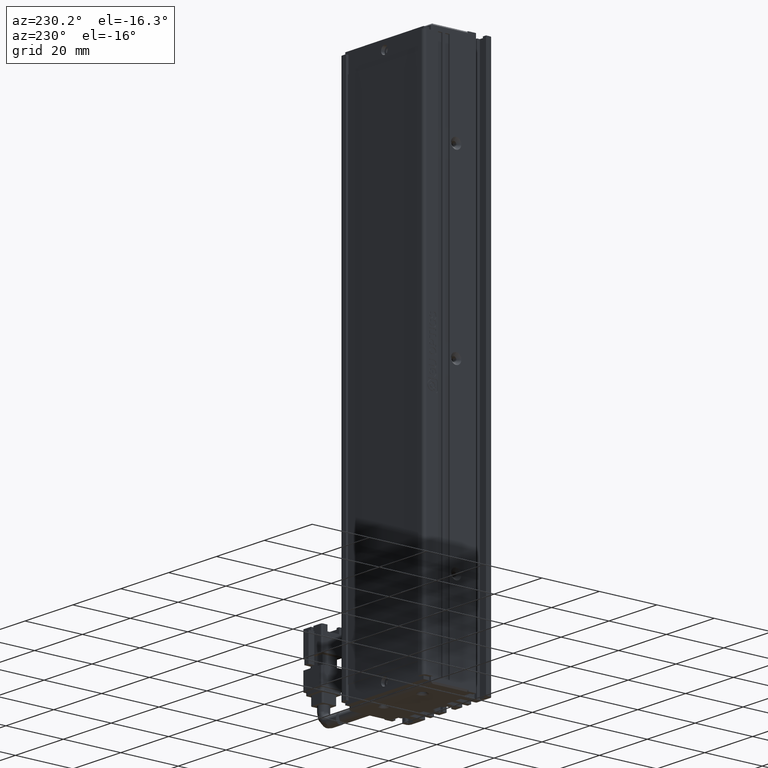
[diagram: clean part render]
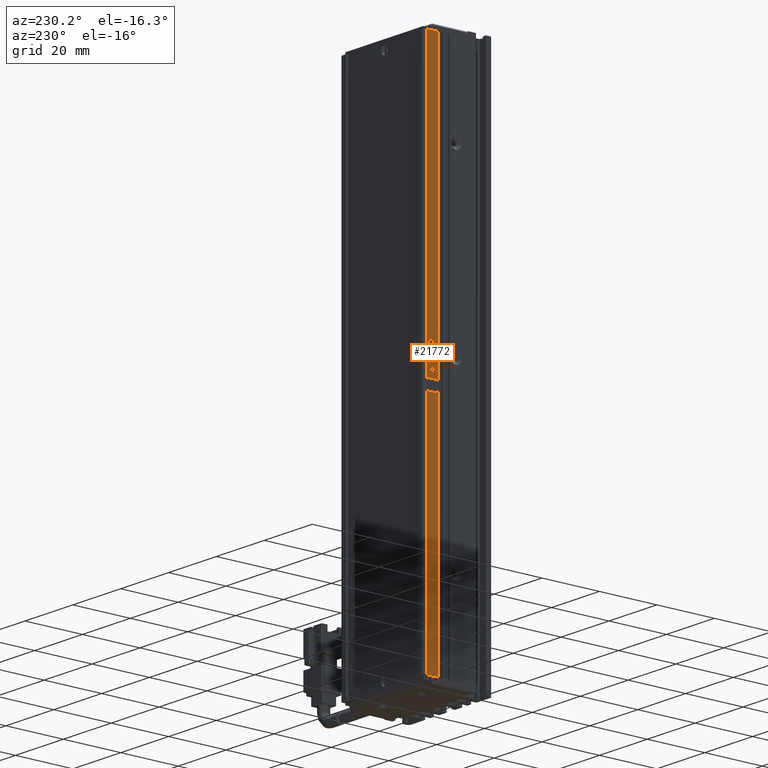
[diagram: same view with one face highlighted and labeled with its STEP entity id]
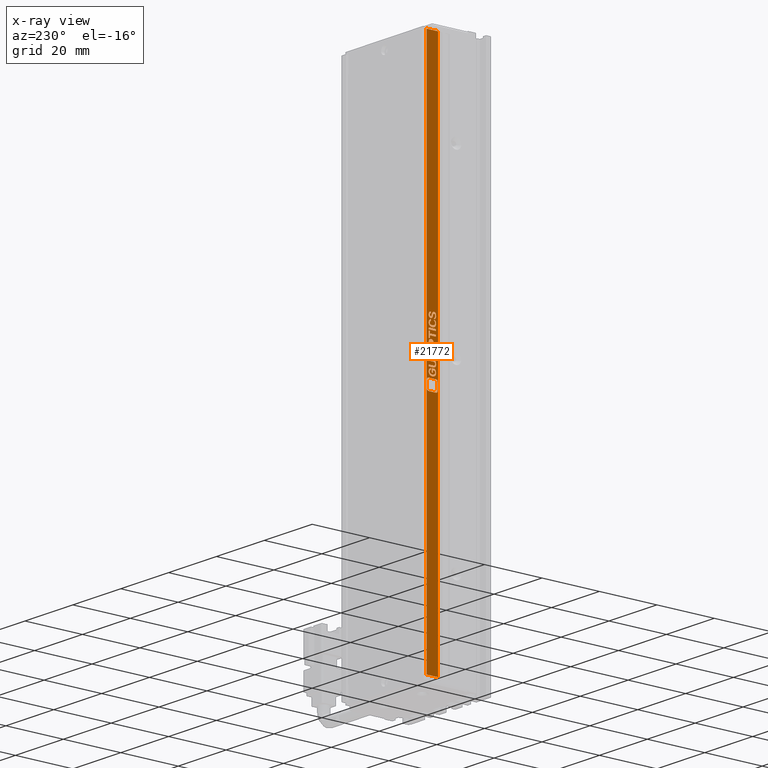
[diagram: x-ray of the same camera — body ghosted, the highlighted face saturated]
A machine part, auxiliary view. The second image highlights one B-rep face of the part: STEP entity #21772.
The next image is the same camera in x-ray: the body ghosted, the highlighted face saturated — about 0% of this face is hidden behind the body in this view.
In plain terms, the highlighted planar face has unit normal (-1, 0, 0).
Its self-contained STEP definition (entity closure, byte-faithful):
#51 = EDGE_CURVE ( 'NONE', #36726, #75204, #46672, .T. ) ;
#113 = DIRECTION ( 'NONE',  ( -0.0000000000000000000, -1.000000000000000000, -0.0000000000000000000 ) ) ;
#222 = ORIENTED_EDGE ( 'NONE', *, *, #36299, .F. ) ;
#394 = LINE ( 'NONE', #42492, #30866 ) ;
#593 = VERTEX_POINT ( 'NONE', #36191 ) ;
#615 = CARTESIAN_POINT ( 'NONE',  ( 23.42537974683542100, 31.00584286050809300, -106.2553649728034600 ) ) ;
#643 = LINE ( 'NONE', #71882, #7338 ) ;
#746 = CARTESIAN_POINT ( 'NONE',  ( 23.42537974683542100, 31.01747076748483800, -104.8414250052534600 ) ) ;
#803 = CARTESIAN_POINT ( 'NONE',  ( 23.42537974683542500, 34.99073232304837700, -205.0000000000000300 ) ) ;
#1131 = ORIENTED_EDGE ( 'NONE', *, *, #7686, .F. ) ;
#1175 = CARTESIAN_POINT ( 'NONE',  ( 23.42537974683542100, 32.48657568906406800, -103.5288912031981900 ) ) ;
#1184 = EDGE_CURVE ( 'NONE', #40805, #28113, #62858, .T. ) ;
#1229 = B_SPLINE_CURVE_WITH_KNOTS ( 'NONE', 3,
 ( #8511, #63631, #27164, #63369 ),
 .UNSPECIFIED., .F., .F.,
 ( 4, 4 ),
 ( 12.00000000000000000, 13.00000000000000000 ),
 .UNSPECIFIED. ) ;
#1252 = ORIENTED_EDGE ( 'NONE', *, *, #41577, .F. ) ;
#1551 = CARTESIAN_POINT ( 'NONE',  ( 23.42537974683542100, 31.98657568906406500, -121.5250377689094400 ) ) ;
#1558 = EDGE_LOOP ( 'NONE', ( #56319, #25325, #64957, #71834, #36431, #23060, #25207, #45150, #32968, #32311, #53117, #67662, #18480, #61311 ) ) ;
#1565 = CARTESIAN_POINT ( 'NONE',  ( 23.42537974683542100, 32.78491262794995000, -113.4834612410564000 ) ) ;
#1579 = ORIENTED_EDGE ( 'NONE', *, *, #58697, .F. ) ;
#1737 = CARTESIAN_POINT ( 'NONE',  ( 23.42537974683542100, 32.17262220069199700, -119.3012681637174900 ) ) ;
#1768 = B_SPLINE_CURVE_WITH_KNOTS ( 'NONE', 3,
 ( #35319, #5483, #23794, #10785 ),
 .UNSPECIFIED., .F., .F.,
 ( 4, 4 ),
 ( 6.000000000000000000, 7.000000000000000000 ),
 .UNSPECIFIED. ) ;
#1866 = VERTEX_POINT ( 'NONE', #46801 ) ;
#1868 = CARTESIAN_POINT ( 'NONE',  ( 23.42537974683542100, 31.39355243325011500, -103.9953595644745800 ) ) ;
#1877 = LINE ( 'NONE', #45883, #77079 ) ;
#1885 = EDGE_CURVE ( 'NONE', #20479, #67409, #68729, .T. ) ;
#1989 = CARTESIAN_POINT ( 'NONE',  ( 23.42537974683542100, 30.68425010766872400, -120.3317576174762100 ) ) ;
#2095 = VERTEX_POINT ( 'NONE', #6061 ) ;
#2267 = B_SPLINE_CURVE_WITH_KNOTS ( 'NONE', 3,
 ( #45944, #3648, #39603, #58189 ),
 .UNSPECIFIED., .F., .F.,
 ( 4, 4 ),
 ( 3.000000000000000000, 4.000000000000000000 ),
 .UNSPECIFIED. ) ;
#2430 = CARTESIAN_POINT ( 'NONE',  ( 23.42537974683542100, 31.36248834455352600, -107.2785531826466800 ) ) ;
#2448 = B_SPLINE_CURVE_WITH_KNOTS ( 'NONE', 3,
 ( #69869, #38772, #33427, #3062 ),
 .UNSPECIFIED., .F., .F.,
 ( 4, 4 ),
 ( 7.000000000000000000, 8.000000000000000000 ),
 .UNSPECIFIED. ) ;
#2456 = EDGE_CURVE ( 'NONE', #45395, #19565, #2267, .T. ) ;
#2524 = VECTOR ( 'NONE', #4626, 1000.000000000000000 ) ;
#2655 = VERTEX_POINT ( 'NONE', #49089 ) ;
#2664 = CARTESIAN_POINT ( 'NONE',  ( 23.42537974683542100, 33.26564545650592200, -106.7072308462485600 ) ) ;
#2734 = LINE ( 'NONE', #29043, #59849 ) ;
#2736 = CARTESIAN_POINT ( 'NONE',  ( 23.42537974683542100, 30.39640236561360400, -125.8518911644461200 ) ) ;
#2737 = CARTESIAN_POINT ( 'NONE',  ( 23.42537974683542100, 33.26564545650592200, -114.5934531285632800 ) ) ;
#2830 = LINE ( 'NONE', #1175, #3826 ) ;
#2934 = CARTESIAN_POINT ( 'NONE',  ( 23.42537974683542100, 33.23076173557570500, -113.1073119711809600 ) ) ;
#3032 = ORIENTED_EDGE ( 'NONE', *, *, #17884, .F. ) ;
#3062 = CARTESIAN_POINT ( 'NONE',  ( 23.42537974683542100, 30.68425010766872400, -106.6855299268326100 ) ) ;
#3628 = DIRECTION ( 'NONE',  ( -0.0000000000000000000, -0.0000000000000000000, -1.000000000000000000 ) ) ;
#3648 = CARTESIAN_POINT ( 'NONE',  ( 23.42537974683542100, 31.02145940999428200, -118.2671956921111400 ) ) ;
#3826 = VECTOR ( 'NONE', #13371, 1000.000000000000000 ) ;
#3904 = B_SPLINE_CURVE_WITH_KNOTS ( 'NONE', 3,
 ( #72820, #55004, #42484, #12625 ),
 .UNSPECIFIED., .F., .F.,
 ( 4, 4 ),
 ( 12.00000000000000000, 13.00000000000000000 ),
 .UNSPECIFIED. ) ;
#3991 = VERTEX_POINT ( 'NONE', #18490 ) ;
#3997 = ORIENTED_EDGE ( 'NONE', *, *, #34635, .F. ) ;
#4228 = DIRECTION ( 'NONE',  ( -0.0000000000000000000, -1.000000000000000000, -0.0000000000000000000 ) ) ;
#4317 = ORIENTED_EDGE ( 'NONE', *, *, #36903, .F. ) ;
#4440 = CARTESIAN_POINT ( 'NONE',  ( 23.42537974683542100, 33.23076173557570500, -112.0985234368380200 ) ) ;
#4626 = DIRECTION ( 'NONE',  ( -0.0000000000000000000, -0.0000000000000000000, 1.000000000000000000 ) ) ;
#4647 = ORIENTED_EDGE ( 'NONE', *, *, #34954, .F. ) ;
#4817 = CARTESIAN_POINT ( 'NONE',  ( 23.42537974683542100, 33.26564545650592200, -119.8219550214785200 ) ) ;
#4869 = ORIENTED_EDGE ( 'NONE', *, *, #75230, .F. ) ;
#4976 = CARTESIAN_POINT ( 'NONE',  ( 23.42537974683542100, 32.41680824720360500, -111.2523903919487800 ) ) ;
#5032 = CARTESIAN_POINT ( 'NONE',  ( 23.42537974683542100, 32.90518034022684900, -106.6747132691799900 ) ) ;
#5141 = EDGE_CURVE ( 'NONE', #53782, #17506, #69372, .T. ) ;
#5249 = EDGE_LOOP ( 'NONE', ( #44089, #1131, #27827, #27060, #34429, #71986, #19159 ) ) ;
#5359 = CARTESIAN_POINT ( 'NONE',  ( 23.42537974683542100, 7.083797468354437600, -23.00000000000000700 ) ) ;
#5483 = CARTESIAN_POINT ( 'NONE',  ( 23.42537974683542100, 31.58723820934531500, -111.5200350647450000 ) ) ;
#5645 = CARTESIAN_POINT ( 'NONE',  ( 23.42537974683542100, 30.16530308192796300, -125.1721022657253400 ) ) ;
#5676 = ORIENTED_EDGE ( 'NONE', *, *, #40365, .F. ) ;
#6015 = EDGE_CURVE ( 'NONE', #62364, #19484, #74139, .T. ) ;
#6061 = CARTESIAN_POINT ( 'NONE',  ( 23.42537974683542100, 31.96331987511056400, -115.7541480988174000 ) ) ;
#6135 = VECTOR ( 'NONE', #75344, 1000.000000000000000 ) ;
#6274 = CARTESIAN_POINT ( 'NONE',  ( 23.42537974683542100, 30.39640236561360400, -122.1234659250104500 ) ) ;
#6322 = VECTOR ( 'NONE', #25749, 1000.000000000000000 ) ;
#6391 = DIRECTION ( 'NONE',  ( -1.000000000000000000, 0.0000000000000000000, 0.0000000000000000000 ) ) ;
#6419 = CARTESIAN_POINT ( 'NONE',  ( 23.42537974683542100, 31.78890127045943400, -118.9650053189365100 ) ) ;
#6533 = CARTESIAN_POINT ( 'NONE',  ( 23.42537974683542100, 30.73076173557570100, -110.2327175958428000 ) ) ;
#6606 = CARTESIAN_POINT ( 'NONE',  ( 23.42537974683542100, 31.59122685185477400, -105.4163979636090100 ) ) ;
#6623 = FACE_BOUND ( 'NONE', #76596, .T. ) ;
#6733 = CARTESIAN_POINT ( 'NONE',  ( 23.42537974683542100, 30.73076173557570100, -115.3310815763729000 ) ) ;
#6962 = CARTESIAN_POINT ( 'NONE',  ( 23.42537974683542100, 31.57959894487801500, -105.7309598889742400 ) ) ;
#6993 = CARTESIAN_POINT ( 'NONE',  ( 23.42537974683542100, 31.14936638673847800, -105.4163979636090100 ) ) ;
#7100 = EDGE_CURVE ( 'NONE', #29045, #16797, #19547, .T. ) ;
#7122 = CARTESIAN_POINT ( 'NONE',  ( 23.42537974683542100, 33.21913382859894200, -113.8703595644746100 ) ) ;
#7146 = CARTESIAN_POINT ( 'NONE',  ( 23.42537974683542100, 33.99073232304837700, -23.00000000000000700 ) ) ;
#7158 = VERTEX_POINT ( 'NONE', #26720 ) ;
#7222 = ORIENTED_EDGE ( 'NONE', *, *, #2456, .F. ) ;
#7247 = LINE ( 'NONE', #66668, #48206 ) ;
#7265 = CARTESIAN_POINT ( 'NONE',  ( 23.42537974683542100, 29.99073232304837300, -205.0000000000000300 ) ) ;
#7335 = CARTESIAN_POINT ( 'NONE',  ( 23.42537974683542100, 33.26564545650592200, -104.4834612410566200 ) ) ;
#7338 = VECTOR ( 'NONE', #65775, 1000.000000000000000 ) ;
#7460 = EDGE_CURVE ( 'NONE', #19484, #11091, #70146, .T. ) ;
#7686 = EDGE_CURVE ( 'NONE', #58052, #59908, #28491, .T. ) ;
#7978 = VERTEX_POINT ( 'NONE', #18571 ) ;
#7983 = CARTESIAN_POINT ( 'NONE',  ( 23.42537974683542100, 31.05235448841505500, -107.0363952594448000 ) ) ;
#8251 = ORIENTED_EDGE ( 'NONE', *, *, #69839, .F. ) ;
#8364 = B_SPLINE_CURVE_WITH_KNOTS ( 'NONE', 3,
 ( #27763, #75669, #27511, #69843 ),
 .UNSPECIFIED., .F., .F.,
 ( 4, 4 ),
 ( 3.000000000000000000, 4.000000000000000000 ),
 .UNSPECIFIED. ) ;
#8511 = CARTESIAN_POINT ( 'NONE',  ( 23.42537974683542100, 30.68425010766872400, -104.4184260869191000 ) ) ;
#8522 = B_SPLINE_CURVE_WITH_KNOTS ( 'NONE', 3,
 ( #53659, #65393, #65647, #72016 ),
 .UNSPECIFIED., .F., .F.,
 ( 4, 4 ),
 ( 9.000000000000000000, 10.00000000000000000 ),
 .UNSPECIFIED. ) ;
#8528 = LINE ( 'NONE', #69027, #51473 ) ;
#8546 = CARTESIAN_POINT ( 'NONE',  ( 23.42537974683542100, 30.73076173557570100, -108.1282692453832100 ) ) ;
#8583 = CARTESIAN_POINT ( 'NONE',  ( 23.42537974683542100, 33.89372841555154300, -125.1721022657253400 ) ) ;
#8707 = VERTEX_POINT ( 'NONE', #7335 ) ;
#8709 = CARTESIAN_POINT ( 'NONE',  ( 23.42537974683542100, 31.00983150301755100, -104.4943455028195600 ) ) ;
#8879 = B_SPLINE_CURVE_WITH_KNOTS ( 'NONE', 3,
 ( #41597, #28846, #73247, #29895 ),
 .UNSPECIFIED., .F., .F.,
 ( 4, 4 ),
 ( 11.00000000000000000, 12.00000000000000000 ),
 .UNSPECIFIED. ) ;
#8963 = CARTESIAN_POINT ( 'NONE',  ( 23.42537974683542100, 31.97494778208732300, -107.8245239776710100 ) ) ;
#9086 = ORIENTED_EDGE ( 'NONE', *, *, #68093, .T. ) ;
#9256 = LINE ( 'NONE', #58555, #13970 ) ;
#9413 = B_SPLINE_CURVE_WITH_KNOTS ( 'NONE', 3,
 ( #67677, #7983, #2430, #26382 ),
 .UNSPECIFIED., .F., .F.,
 ( 4, 4 ),
 ( 3.000000000000000000, 4.000000000000000000 ),
 .UNSPECIFIED. ) ;
#9851 = VERTEX_POINT ( 'NONE', #6533 ) ;
#10022 = ORIENTED_EDGE ( 'NONE', *, *, #74504, .F. ) ;
#10026 = CARTESIAN_POINT ( 'NONE',  ( 23.42537974683542100, 31.66099429371523800, -117.3812438262376600 ) ) ;
#10029 = CARTESIAN_POINT ( 'NONE',  ( 23.42537974683542100, 32.95933123260110900, -111.2452919603644300 ) ) ;
#10285 = CARTESIAN_POINT ( 'NONE',  ( 23.42537974683542100, 33.26564545650592200, -104.4834612410566200 ) ) ;
#10512 = EDGE_CURVE ( 'NONE', #16797, #55626, #1229, .T. ) ;
#10570 = CARTESIAN_POINT ( 'NONE',  ( 23.42537974683542100, 32.90518034022684900, -104.4726445834036100 ) ) ;
#10785 = CARTESIAN_POINT ( 'NONE',  ( 23.42537974683542100, 32.41680824720360500, -111.2523903919487800 ) ) ;
#10889 = VERTEX_POINT ( 'NONE', #6606 ) ;
#10955 = CARTESIAN_POINT ( 'NONE',  ( 23.42537974683542100, 30.73076173557570100, -108.6381394454912200 ) ) ;
#11091 = VERTEX_POINT ( 'NONE', #32702 ) ;
#11100 = CARTESIAN_POINT ( 'NONE',  ( 23.42537974683542100, 31.02145940999428200, -116.8244563735604800 ) ) ;
#11316 = EDGE_CURVE ( 'NONE', #59908, #35628, #1768, .T. ) ;
#11681 = VECTOR ( 'NONE', #30908, 1000.000000000000000 ) ;
#11739 = VECTOR ( 'NONE', #78133, 1000.000000000000000 ) ;
#11873 = VERTEX_POINT ( 'NONE', #47720 ) ;
#12040 = CARTESIAN_POINT ( 'NONE',  ( 23.42537974683542100, 32.44006406115708800, -105.6766737883794200 ) ) ;
#12296 = EDGE_CURVE ( 'NONE', #74904, #23761, #53038, .T. ) ;
#12337 = VERTEX_POINT ( 'NONE', #17314 ) ;
#12410 = VERTEX_POINT ( 'NONE', #30191 ) ;
#12577 = VERTEX_POINT ( 'NONE', #69503 ) ;
#12611 = CARTESIAN_POINT ( 'NONE',  ( 23.42537974683542100, 30.68425010766872400, -104.4184260869191000 ) ) ;
#12625 = CARTESIAN_POINT ( 'NONE',  ( 23.42537974683542100, 31.98657568906406500, -121.5250377689094400 ) ) ;
#12635 = DIRECTION ( 'NONE',  ( -0.0000000000000000000, 1.000000000000000000, -0.0000000000000000000 ) ) ;
#12952 = LINE ( 'NONE', #73681, #6322 ) ;
#13084 = CARTESIAN_POINT ( 'NONE',  ( 23.42537974683542100, 31.19188937213601100, -105.9769036423544000 ) ) ;
#13234 = VERTEX_POINT ( 'NONE', #51632 ) ;
#13240 = AXIS2_PLACEMENT_3D ( 'NONE', #5359, #6391, #37038 ) ;
#13288 = DIRECTION ( 'NONE',  ( -0.0000000000000000000, -0.0000000000000000000, 1.000000000000000000 ) ) ;
#13363 = CARTESIAN_POINT ( 'NONE',  ( 23.42537974683542100, 31.96331987511056400, -115.7541480988174000 ) ) ;
#13371 = DIRECTION ( 'NONE',  ( -0.0000000000000000000, -0.0000000000000000000, 1.000000000000000000 ) ) ;
#13432 = B_SPLINE_CURVE_WITH_KNOTS ( 'NONE', 3,
 ( #50418, #75371, #57295, #56770 ),
 .UNSPECIFIED., .F., .F.,
 ( 4, 4 ),
 ( 9.000000000000000000, 10.00000000000000000 ),
 .UNSPECIFIED. ) ;
#13550 = CARTESIAN_POINT ( 'NONE',  ( 23.42537974683542100, 33.23076173557570500, -108.9418847132036500 ) ) ;
#13717 = VERTEX_POINT ( 'NONE', #62913 ) ;
#13782 = CARTESIAN_POINT ( 'NONE',  ( 23.42537974683542100, 30.73076173557570100, -109.7120307380820500 ) ) ;
#13946 = B_SPLINE_CURVE_WITH_KNOTS ( 'NONE', 3,
 ( #36436, #746, #43309, #18483 ),
 .UNSPECIFIED., .F., .F.,
 ( 4, 4 ),
 ( 1.000000000000000000, 2.000000000000000000 ),
 .UNSPECIFIED. ) ;
#13970 = VECTOR ( 'NONE', #60154, 1000.000000000000000 ) ;
#14031 = CARTESIAN_POINT ( 'NONE',  ( 23.42537974683542100, 32.78890127045940500, -107.7884233827546900 ) ) ;
#14124 = CARTESIAN_POINT ( 'NONE',  ( 23.42537974683542100, 31.89355243325011500, -105.1055542643124500 ) ) ;
#14402 = CARTESIAN_POINT ( 'NONE',  ( 23.42537974683542100, 33.23076173557570500, -118.4443184611754800 ) ) ;
#14652 = B_SPLINE_CURVE_WITH_KNOTS ( 'NONE', 3,
 ( #33001, #26025, #44160, #8709 ),
 .UNSPECIFIED., .F., .F.,
 ( 4, 4 ),
 ( 2.000000000000000000, 3.000000000000000000 ),
 .UNSPECIFIED. ) ;
#14675 = VERTEX_POINT ( 'NONE', #34354 ) ;
#14680 = LINE ( 'NONE', #14911, #6135 ) ;
#14783 = VERTEX_POINT ( 'NONE', #58558 ) ;
#14911 = CARTESIAN_POINT ( 'NONE',  ( 23.42537974683542500, 34.99073232304837700, -25.00000000000000700 ) ) ;
#14938 = DIRECTION ( 'NONE',  ( 0.0000000000000000000, 0.0000000000000000000, 1.000000000000000000 ) ) ;
#15020 = EDGE_CURVE ( 'NONE', #34603, #7978, #22352, .T. ) ;
#15283 = EDGE_CURVE ( 'NONE', #19565, #29015, #394, .T. ) ;
#15353 = CARTESIAN_POINT ( 'NONE',  ( 23.42537974683542100, 32.90518034022684900, -106.6747132691799900 ) ) ;
#15375 = DIRECTION ( 'NONE',  ( -0.0000000000000000000, 1.000000000000000000, -0.0000000000000000000 ) ) ;
#15483 = DIRECTION ( 'NONE',  ( -0.0000000000000000000, 1.000000000000000000, -0.0000000000000000000 ) ) ;
#15527 = CARTESIAN_POINT ( 'NONE',  ( 23.42537974683542100, 33.26564545650592200, -120.3643427986552200 ) ) ;
#15657 = EDGE_LOOP ( 'NONE', ( #73868, #78532, #29262, #74863, #4317, #46280, #5676, #4869, #69207, #69522, #30099, #34905, #70764, #41421 ) ) ;
#16207 = CARTESIAN_POINT ( 'NONE',  ( 23.42537974683542100, 32.88956379074064500, -107.0797970982767000 ) ) ;
#16253 = CARTESIAN_POINT ( 'NONE',  ( 23.42537974683542100, 32.44006406115708800, -105.6766737883794200 ) ) ;
#16797 = VERTEX_POINT ( 'NONE', #12611 ) ;
#16942 = CARTESIAN_POINT ( 'NONE',  ( 23.42537974683542100, 33.26564545650592200, -104.4834612410566200 ) ) ;
#16949 = VERTEX_POINT ( 'NONE', #51262 ) ;
#16970 = EDGE_CURVE ( 'NONE', #28223, #40805, #8364, .T. ) ;
#17018 = FACE_BOUND ( 'NONE', #5249, .T. ) ;
#17082 = EDGE_CURVE ( 'NONE', #37450, #45600, #62597, .T. ) ;
#17226 = VECTOR ( 'NONE', #66444, 1000.000000000000000 ) ;
#17314 = CARTESIAN_POINT ( 'NONE',  ( 23.42537974683542100, 30.84506481686572600, -125.8518911644461200 ) ) ;
#17506 = VERTEX_POINT ( 'NONE', #50627 ) ;
#17571 = VECTOR ( 'NONE', #68898, 1000.000000000000000 ) ;
#17779 = EDGE_CURVE ( 'NONE', #75661, #14783, #12952, .T. ) ;
#17884 = EDGE_CURVE ( 'NONE', #3991, #45395, #45650, .T. ) ;
#17912 = EDGE_CURVE ( 'NONE', #36990, #16949, #33960, .T. ) ;
#17984 = EDGE_CURVE ( 'NONE', #48483, #3991, #37675, .T. ) ;
#18281 = CARTESIAN_POINT ( 'NONE',  ( 23.42537974683542100, 32.57959894487801500, -104.8306083476005500 ) ) ;
#18455 = B_SPLINE_CURVE_WITH_KNOTS ( 'NONE', 3,
 ( #52966, #65962, #11100, #77386 ),
 .UNSPECIFIED., .F., .F.,
 ( 4, 4 ),
 ( 8.000000000000000000, 9.000000000000000000 ),
 .UNSPECIFIED. ) ;
#18480 = ORIENTED_EDGE ( 'NONE', *, *, #47428, .F. ) ;
#18483 = CARTESIAN_POINT ( 'NONE',  ( 23.42537974683542100, 31.59122685185477400, -105.4163979636090100 ) ) ;
#18490 = CARTESIAN_POINT ( 'NONE',  ( 23.42537974683542100, 31.66099429371523800, -117.3812438262376600 ) ) ;
#18571 = CARTESIAN_POINT ( 'NONE',  ( 23.42537974683542100, 30.73076173557570100, -112.5975093751830900 ) ) ;
#18976 = EDGE_CURVE ( 'NONE', #12410, #73267, #9413, .T. ) ;
#19098 = VECTOR ( 'NONE', #20297, 1000.000000000000000 ) ;
#19108 = VERTEX_POINT ( 'NONE', #33849 ) ;
#19127 = EDGE_CURVE ( 'NONE', #17506, #13717, #75376, .T. ) ;
#19159 = ORIENTED_EDGE ( 'NONE', *, *, #32923, .F. ) ;
#19207 = VERTEX_POINT ( 'NONE', #41249 ) ;
#19361 = ORIENTED_EDGE ( 'NONE', *, *, #66019, .T. ) ;
#19404 = DIRECTION ( 'NONE',  ( -0.0000000000000000000, -0.0000000000000000000, 1.000000000000000000 ) ) ;
#19433 = ORIENTED_EDGE ( 'NONE', *, *, #17779, .F. ) ;
#19484 = VERTEX_POINT ( 'NONE', #43873 ) ;
#19539 = CARTESIAN_POINT ( 'NONE',  ( 23.42537974683542100, 33.23076173557570500, -116.8605569684768000 ) ) ;
#19547 = B_SPLINE_CURVE_WITH_KNOTS ( 'NONE', 3,
 ( #6993, #19737, #28813, #54580 ),
 .UNSPECIFIED., .F., .F.,
 ( 4, 4 ),
 ( 13.00000000000000000, 14.00000000000000000 ),
 .UNSPECIFIED. ) ;
#19565 = VERTEX_POINT ( 'NONE', #72776 ) ;
#19737 = CARTESIAN_POINT ( 'NONE',  ( 23.42537974683542100, 30.81614572692236500, -105.1705894184496900 ) ) ;
#19847 = CARTESIAN_POINT ( 'NONE',  ( 23.42537974683542100, 33.23076173557570500, -111.0028636207210900 ) ) ;
#20145 = EDGE_LOOP ( 'NONE', ( #62238, #8251, #52080, #65492 ) ) ;
#20297 = DIRECTION ( 'NONE',  ( -0.0000000000000000000, 1.000000000000000000, -0.0000000000000000000 ) ) ;
#20368 = EDGE_CURVE ( 'NONE', #30064, #57127, #35744, .T. ) ;
#20479 = VERTEX_POINT ( 'NONE', #28456 ) ;
#20709 = EDGE_CURVE ( 'NONE', #11873, #10889, #13946, .T. ) ;
#21082 = ORIENTED_EDGE ( 'NONE', *, *, #17912, .F. ) ;
#21105 = LINE ( 'NONE', #58026, #49729 ) ;
#21113 = B_SPLINE_CURVE_WITH_KNOTS ( 'NONE', 3,
 ( #58879, #71617, #40544, #28538 ),
 .UNSPECIFIED., .F., .F.,
 ( 4, 4 ),
 ( 1.000000000000000000, 2.000000000000000000 ),
 .UNSPECIFIED. ) ;
#21370 = VERTEX_POINT ( 'NONE', #7265 ) ;
#21411 = EDGE_CURVE ( 'NONE', #2095, #28450, #31851, .T. ) ;
#21428 = EDGE_CURVE ( 'NONE', #14675, #62495, #13432, .T. ) ;
#21772 = ADVANCED_FACE ( 'NONE', ( #37130, #6623, #73308, #27552, #77999, #17018, #61835, #69493, #29502, #66670 ), #30631, .T. ) ;
#21835 = CARTESIAN_POINT ( 'NONE',  ( 23.42537974683542100, 32.90518034022684900, -106.6747132691799900 ) ) ;
#22009 = CARTESIAN_POINT ( 'NONE',  ( 23.42537974683542100, 32.89737206548375800, -104.2557029933551900 ) ) ;
#22352 = LINE ( 'NONE', #75805, #17571 ) ;
#22356 = CARTESIAN_POINT ( 'NONE',  ( 23.42537974683542100, 32.53308731697104200, -119.3121524254806000 ) ) ;
#22408 = ORIENTED_EDGE ( 'NONE', *, *, #21411, .F. ) ;
#22424 = CARTESIAN_POINT ( 'NONE',  ( 23.42537974683542100, 31.02145940999428200, -117.9128149457617200 ) ) ;
#22550 = CARTESIAN_POINT ( 'NONE',  ( 23.42537974683542100, 33.07803471934349900, -125.8518911644461200 ) ) ;
#22621 = DIRECTION ( 'NONE',  ( -0.0000000000000000000, 1.000000000000000000, -0.0000000000000000000 ) ) ;
#23060 = ORIENTED_EDGE ( 'NONE', *, *, #24812, .F. ) ;
#23386 = CARTESIAN_POINT ( 'NONE',  ( 23.42537974683542100, 30.68425010766872400, -106.6855299268326100 ) ) ;
#23761 = VERTEX_POINT ( 'NONE', #22356 ) ;
#23794 = CARTESIAN_POINT ( 'NONE',  ( 23.42537974683542100, 31.85866871231986900, -111.2379907164487500 ) ) ;
#23978 = VERTEX_POINT ( 'NONE', #37274 ) ;
#23991 = EDGE_CURVE ( 'NONE', #21370, #46646, #67384, .T. ) ;
#24128 = CARTESIAN_POINT ( 'NONE',  ( 23.42537974683542100, 32.53308731697104200, -119.8544725985470900 ) ) ;
#24227 = CARTESIAN_POINT ( 'NONE',  ( 23.42537974683542100, 30.66099429371523800, -118.6395591318081300 ) ) ;
#24812 = EDGE_CURVE ( 'NONE', #13717, #62364, #44074, .T. ) ;
#24833 = CARTESIAN_POINT ( 'NONE',  ( 23.42537974683542100, 31.15700565120577900, -115.7180475039013000 ) ) ;
#24895 = VERTEX_POINT ( 'NONE', #2934 ) ;
#25167 = ORIENTED_EDGE ( 'NONE', *, *, #63540, .F. ) ;
#25207 = ORIENTED_EDGE ( 'NONE', *, *, #19127, .F. ) ;
#25240 = ORIENTED_EDGE ( 'NONE', *, *, #51, .F. ) ;
#25325 = ORIENTED_EDGE ( 'NONE', *, *, #12296, .F. ) ;
#25451 = CARTESIAN_POINT ( 'NONE',  ( 23.42537974683542100, 31.24238964255243200, -119.3012681637174900 ) ) ;
#25526 = CARTESIAN_POINT ( 'NONE',  ( 23.42537974683542100, 31.14155811199539100, -119.8690750863781700 ) ) ;
#25749 = DIRECTION ( 'NONE',  ( -0.0000000000000000000, 1.000000000000000000, -0.0000000000000000000 ) ) ;
#25850 = EDGE_CURVE ( 'NONE', #593, #19108, #2830, .T. ) ;
#25965 = CARTESIAN_POINT ( 'NONE',  ( 23.42537974683542100, 32.41680824720360500, -111.2523903919487800 ) ) ;
#26025 = CARTESIAN_POINT ( 'NONE',  ( 23.42537974683542100, 31.13773847976173700, -104.0026608083900500 ) ) ;
#26044 = CARTESIAN_POINT ( 'NONE',  ( 23.42537974683542100, 31.72295346083258500, -104.1436153784278700 ) ) ;
#26096 = EDGE_CURVE ( 'NONE', #55626, #53062, #8879, .T. ) ;
#26097 = CARTESIAN_POINT ( 'NONE',  ( 23.42537974683542100, 33.23076173557570500, -117.3812438262376600 ) ) ;
#26130 = CARTESIAN_POINT ( 'NONE',  ( 23.42537974683542100, 33.23458136780934800, -115.3310815763729000 ) ) ;
#26133 = CARTESIAN_POINT ( 'NONE',  ( 23.42537974683542100, 29.99073232304837300, -23.00000000000000700 ) ) ;
#26299 = CARTESIAN_POINT ( 'NONE',  ( 23.42537974683542100, 33.21913382859894200, -107.4160599430575900 ) ) ;
#26382 = CARTESIAN_POINT ( 'NONE',  ( 23.42537974683542100, 31.95169196813381900, -107.2930204622571300 ) ) ;
#26402 = CARTESIAN_POINT ( 'NONE',  ( 23.42537974683542100, 32.57959894487801500, -105.3621118630143100 ) ) ;
#26416 = CARTESIAN_POINT ( 'NONE',  ( 23.42537974683542100, 32.17262220069199700, -120.4836640533873400 ) ) ;
#26500 = VERTEX_POINT ( 'NONE', #5032 ) ;
#26640 = ORIENTED_EDGE ( 'NONE', *, *, #44345, .F. ) ;
#26678 = CARTESIAN_POINT ( 'NONE',  ( 23.42537974683542100, 31.82378499138965100, -120.4836640533873400 ) ) ;
#26720 = CARTESIAN_POINT ( 'NONE',  ( 23.42537974683542100, 33.23076173557570500, -108.6381394454912200 ) ) ;
#26915 = B_SPLINE_CURVE_WITH_KNOTS ( 'NONE', 3,
 ( #6962, #13084, #615, #55951 ),
 .UNSPECIFIED., .F., .F.,
 ( 4, 4 ),
 ( 4.000000000000000000, 5.000000000000000000 ),
 .UNSPECIFIED. ) ;
#27060 = ORIENTED_EDGE ( 'NONE', *, *, #15020, .F. ) ;
#27083 = CARTESIAN_POINT ( 'NONE',  ( 23.42537974683542100, 31.02145940999428200, -117.9128149457617200 ) ) ;
#27164 = CARTESIAN_POINT ( 'NONE',  ( 23.42537974683542100, 30.93242479668980500, -103.4566900133658300 ) ) ;
#27281 = B_SPLINE_CURVE_WITH_KNOTS ( 'NONE', 3,
 ( #62506, #26044, #68668, #1868 ),
 .UNSPECIFIED., .F., .F.,
 ( 4, 4 ),
 ( 3.000000000000000000, 4.000000000000000000 ),
 .UNSPECIFIED. ) ;
#27291 = VECTOR ( 'NONE', #68138, 1000.000000000000000 ) ;
#27496 = VECTOR ( 'NONE', #34647, 1000.000000000000000 ) ;
#27511 = CARTESIAN_POINT ( 'NONE',  ( 23.42537974683542100, 33.89372841555154300, -122.3545991790521200 ) ) ;
#27552 = FACE_BOUND ( 'NONE', #67169, .T. ) ;
#27763 = CARTESIAN_POINT ( 'NONE',  ( 23.42537974683542100, 33.21397347585302400, -122.1234659250104500 ) ) ;
#27827 = ORIENTED_EDGE ( 'NONE', *, *, #42609, .F. ) ;
#27849 = B_SPLINE_CURVE_WITH_KNOTS ( 'NONE', 3,
 ( #15353, #75032, #62779, #57203 ),
 .UNSPECIFIED., .F., .F.,
 ( 4, 4 ),
 ( 1.000000000000000000, 2.000000000000000000 ),
 .UNSPECIFIED. ) ;
#27985 = CARTESIAN_POINT ( 'NONE',  ( 23.42537974683542100, 30.84506481686572600, -125.8518911644461200 ) ) ;
#28113 = VERTEX_POINT ( 'NONE', #77633 ) ;
#28168 = CARTESIAN_POINT ( 'NONE',  ( 23.42537974683542100, 32.21913382859894200, -104.4184260869191000 ) ) ;
#28223 = VERTEX_POINT ( 'NONE', #47824 ) ;
#28450 = VERTEX_POINT ( 'NONE', #50493 ) ;
#28456 = CARTESIAN_POINT ( 'NONE',  ( 23.42537974683542100, 33.23076173557570500, -111.0028636207210900 ) ) ;
#28491 = LINE ( 'NONE', #52007, #27496 ) ;
#28538 = CARTESIAN_POINT ( 'NONE',  ( 23.42537974683542100, 32.53308731697104200, -119.8544725985470900 ) ) ;
#28734 = DIRECTION ( 'NONE',  ( -0.0000000000000000000, 1.000000000000000000, -0.0000000000000000000 ) ) ;
#28813 = CARTESIAN_POINT ( 'NONE',  ( 23.42537974683542100, 30.66099429371523800, -104.8379095915162400 ) ) ;
#28827 = EDGE_CURVE ( 'NONE', #7158, #67242, #65539, .T. ) ;
#28843 = VECTOR ( 'NONE', #39482, 1000.000000000000000 ) ;
#28846 = CARTESIAN_POINT ( 'NONE',  ( 23.42537974683542100, 31.82378499138965100, -103.4637884449506400 ) ) ;
#29015 = VERTEX_POINT ( 'NONE', #14402 ) ;
#29043 = CARTESIAN_POINT ( 'NONE',  ( 23.42537974683542100, 32.88192452627335900, -109.7120307380820500 ) ) ;
#29045 = VERTEX_POINT ( 'NONE', #57024 ) ;
#29139 = CARTESIAN_POINT ( 'NONE',  ( 23.42537974683542100, 31.97494778208732300, -121.0043509111486900 ) ) ;
#29262 = ORIENTED_EDGE ( 'NONE', *, *, #20709, .F. ) ;
#29320 = EDGE_CURVE ( 'NONE', #24895, #34603, #30268, .T. ) ;
#29502 = FACE_BOUND ( 'NONE', #1558, .T. ) ;
#29895 = CARTESIAN_POINT ( 'NONE',  ( 23.42537974683542100, 32.21913382859894200, -104.4184260869191000 ) ) ;
#30064 = VERTEX_POINT ( 'NONE', #73376 ) ;
#30099 = ORIENTED_EDGE ( 'NONE', *, *, #21428, .F. ) ;
#30191 = CARTESIAN_POINT ( 'NONE',  ( 23.42537974683542100, 31.02145940999428200, -106.5662086721003200 ) ) ;
#30268 = LINE ( 'NONE', #54295, #68366 ) ;
#30571 = VERTEX_POINT ( 'NONE', #49064 ) ;
#30631 = PLANE ( 'NONE',  #13240 ) ;
#30743 = VERTEX_POINT ( 'NONE', #26416 ) ;
#30769 = EDGE_CURVE ( 'NONE', #73267, #26500, #62939, .T. ) ;
#30866 = VECTOR ( 'NONE', #12635, 1000.000000000000000 ) ;
#30908 = DIRECTION ( 'NONE',  ( -0.0000000000000000000, 1.000000000000000000, -0.0000000000000000000 ) ) ;
#30927 = DIRECTION ( 'NONE',  ( -0.0000000000000000000, -1.000000000000000000, -0.0000000000000000000 ) ) ;
#31027 = EDGE_CURVE ( 'NONE', #23761, #74496, #44623, .T. ) ;
#31503 = CARTESIAN_POINT ( 'NONE',  ( 23.42537974683542100, 32.16099429371524100, -105.4128149457617700 ) ) ;
#31582 = ORIENTED_EDGE ( 'NONE', *, *, #34066, .F. ) ;
#31669 = CARTESIAN_POINT ( 'NONE',  ( 23.42537974683542100, 31.78890127045943400, -118.9650053189365100 ) ) ;
#31804 = ORIENTED_EDGE ( 'NONE', *, *, #46568, .F. ) ;
#31819 = CARTESIAN_POINT ( 'NONE',  ( 23.42537974683542100, 30.68425010766872400, -119.7894374444096100 ) ) ;
#31851 = B_SPLINE_CURVE_WITH_KNOTS ( 'NONE', 3,
 ( #13363, #24833, #6733, #55987 ),
 .UNSPECIFIED., .F., .F.,
 ( 4, 4 ),
 ( 1.000000000000000000, 2.000000000000000000 ),
 .UNSPECIFIED. ) ;
#32076 = CARTESIAN_POINT ( 'NONE',  ( 23.42537974683542100, 33.23076173557570500, -108.1282692453832100 ) ) ;
#32201 = CARTESIAN_POINT ( 'NONE',  ( 23.42537974683542100, 31.66099429371523800, -117.3812438262376600 ) ) ;
#32311 = ORIENTED_EDGE ( 'NONE', *, *, #75653, .F. ) ;
#32693 = CARTESIAN_POINT ( 'NONE',  ( 23.42537974683542100, 30.71531419636531300, -121.0983882286174100 ) ) ;
#32702 = CARTESIAN_POINT ( 'NONE',  ( 23.42537974683542100, 32.91680824720360500, -120.3643427986552200 ) ) ;
#32718 = CARTESIAN_POINT ( 'NONE',  ( 23.42537974683542100, 31.98657568906406500, -121.5250377689094400 ) ) ;
#32923 = EDGE_CURVE ( 'NONE', #35628, #1866, #56296, .T. ) ;
#32968 = ORIENTED_EDGE ( 'NONE', *, *, #41610, .F. ) ;
#33001 = CARTESIAN_POINT ( 'NONE',  ( 23.42537974683542100, 31.39355243325011500, -103.9953595644745800 ) ) ;
#33106 = CARTESIAN_POINT ( 'NONE',  ( 23.42537974683542100, 31.95169196813381900, -107.2930204622571300 ) ) ;
#33256 = CARTESIAN_POINT ( 'NONE',  ( 23.42537974683542100, 31.21913382859894200, -117.3668441507373900 ) ) ;
#33427 = CARTESIAN_POINT ( 'NONE',  ( 23.42537974683542100, 30.72312247110841500, -107.4087586991419000 ) ) ;
#33624 = EDGE_CURVE ( 'NONE', #69034, #2095, #63474, .T. ) ;
#33640 = LINE ( 'NONE', #13550, #11681 ) ;
#33694 = VERTEX_POINT ( 'NONE', #38695 ) ;
#33833 = EDGE_CURVE ( 'NONE', #2655, #9851, #643, .T. ) ;
#33849 = CARTESIAN_POINT ( 'NONE',  ( 23.42537974683542100, 32.48657568906406800, -103.5288912031981900 ) ) ;
#33960 = B_SPLINE_CURVE_WITH_KNOTS ( 'NONE', 3,
 ( #39374, #26299, #14031, #8963 ),
 .UNSPECIFIED., .F., .F.,
 ( 4, 4 ),
 ( 8.000000000000000000, 9.000000000000000000 ),
 .UNSPECIFIED. ) ;
#34066 = EDGE_CURVE ( 'NONE', #9851, #62509, #68238, .T. ) ;
#34184 = CARTESIAN_POINT ( 'NONE',  ( 23.42537974683542100, 33.89372841555154300, -125.1721022657253400 ) ) ;
#34354 = CARTESIAN_POINT ( 'NONE',  ( 23.42537974683542100, 32.57959894487801500, -104.8306083476005500 ) ) ;
#34357 = EDGE_LOOP ( 'NONE', ( #49068, #1252, #25167, #31582, #74952, #222, #41481, #71475 ) ) ;
#34429 = ORIENTED_EDGE ( 'NONE', *, *, #29320, .F. ) ;
#34573 = VECTOR ( 'NONE', #70216, 1000.000000000000000 ) ;
#34603 = VERTEX_POINT ( 'NONE', #74051 ) ;
#34610 = EDGE_CURVE ( 'NONE', #66507, #19207, #50745, .T. ) ;
#34635 = EDGE_CURVE ( 'NONE', #57698, #36726, #35634, .T. ) ;
#34647 = DIRECTION ( 'NONE',  ( -0.0000000000000000000, -0.0000000000000000000, 1.000000000000000000 ) ) ;
#34905 = ORIENTED_EDGE ( 'NONE', *, *, #67942, .F. ) ;
#34954 = EDGE_CURVE ( 'NONE', #12337, #60623, #57903, .T. ) ;
#35062 = VECTOR ( 'NONE', #113, 1000.000000000000000 ) ;
#35073 = CARTESIAN_POINT ( 'NONE',  ( 23.42537974683542100, 33.25002890701971800, -103.9339750322949500 ) ) ;
#35194 = CARTESIAN_POINT ( 'NONE',  ( 23.42537974683542100, 29.99073232304837300, -24.99999999999999300 ) ) ;
#35319 = CARTESIAN_POINT ( 'NONE',  ( 23.42537974683542100, 31.60285475883150500, -112.0985234368380200 ) ) ;
#35455 = VECTOR ( 'NONE', #30927, 1000.000000000000000 ) ;
#35628 = VERTEX_POINT ( 'NONE', #25965 ) ;
#35634 = LINE ( 'NONE', #31669, #41348 ) ;
#35744 = LINE ( 'NONE', #39687, #76656 ) ;
#36191 = CARTESIAN_POINT ( 'NONE',  ( 23.42537974683542100, 32.48657568906406800, -104.0278771415431600 ) ) ;
#36299 = EDGE_CURVE ( 'NONE', #67409, #2655, #8528, .T. ) ;
#36340 = CARTESIAN_POINT ( 'NONE',  ( 23.42537974683542100, 31.06016276315818600, -120.7548241399210000 ) ) ;
#36431 = ORIENTED_EDGE ( 'NONE', *, *, #6015, .F. ) ;
#36436 = CARTESIAN_POINT ( 'NONE',  ( 23.42537974683542100, 31.00983150301755100, -104.4943455028195600 ) ) ;
#36526 = EDGE_CURVE ( 'NONE', #11091, #74904, #21113, .T. ) ;
#36586 = VECTOR ( 'NONE', #75557, 1000.000000000000000 ) ;
#36697 = VECTOR ( 'NONE', #76843, 1000.000000000000000 ) ;
#36726 = VERTEX_POINT ( 'NONE', #67370 ) ;
#36903 = EDGE_CURVE ( 'NONE', #19207, #12577, #27281, .T. ) ;
#36919 = ORIENTED_EDGE ( 'NONE', *, *, #33624, .F. ) ;
#36929 = CARTESIAN_POINT ( 'NONE',  ( 23.42537974683542100, 30.16530308192796300, -122.3545991790521200 ) ) ;
#36990 = VERTEX_POINT ( 'NONE', #2664 ) ;
#37038 = DIRECTION ( 'NONE',  ( 0.0000000000000000000, 0.0000000000000000000, 1.000000000000000000 ) ) ;
#37078 = ORIENTED_EDGE ( 'NONE', *, *, #77844, .F. ) ;
#37130 = FACE_BOUND ( 'NONE', #20145, .T. ) ;
#37159 = VECTOR ( 'NONE', #41402, 1000.000000000000000 ) ;
#37274 = CARTESIAN_POINT ( 'NONE',  ( 23.42537974683542100, 33.99073232304837700, -25.00000000000000700 ) ) ;
#37359 = LINE ( 'NONE', #42103, #35455 ) ;
#37378 = CARTESIAN_POINT ( 'NONE',  ( 23.42537974683542100, 32.87793588376391100, -120.7694266277519700 ) ) ;
#37450 = VERTEX_POINT ( 'NONE', #66267 ) ;
#37564 = EDGE_CURVE ( 'NONE', #68713, #69034, #70976, .T. ) ;
#37675 = LINE ( 'NONE', #10026, #36697 ) ;
#38041 = CARTESIAN_POINT ( 'NONE',  ( 23.42537974683542100, 33.26564545650592200, -114.5934531285632800 ) ) ;
#38104 = CARTESIAN_POINT ( 'NONE',  ( 23.42537974683542100, 31.02145940999428200, -120.3209409598233700 ) ) ;
#38695 = CARTESIAN_POINT ( 'NONE',  ( 23.42537974683542100, 32.88192452627335900, -108.9418847132036500 ) ) ;
#38772 = CARTESIAN_POINT ( 'NONE',  ( 23.42537974683542100, 31.15318601897212100, -107.7884233827546900 ) ) ;
#38831 = VECTOR ( 'NONE', #59423, 1000.000000000000000 ) ;
#38852 = CARTESIAN_POINT ( 'NONE',  ( 23.42537974683542100, 33.23076173557570500, -113.1073119711809600 ) ) ;
#39374 = CARTESIAN_POINT ( 'NONE',  ( 23.42537974683542100, 33.26564545650592200, -106.7072308462485600 ) ) ;
#39462 = ORIENTED_EDGE ( 'NONE', *, *, #45926, .F. ) ;
#39482 = DIRECTION ( 'NONE',  ( -0.0000000000000000000, -0.0000000000000000000, 1.000000000000000000 ) ) ;
#39503 = ORIENTED_EDGE ( 'NONE', *, *, #37564, .F. ) ;
#39603 = CARTESIAN_POINT ( 'NONE',  ( 23.42537974683542100, 31.23458136780934400, -118.4443184611754800 ) ) ;
#39625 = CARTESIAN_POINT ( 'NONE',  ( 23.42537974683542100, 31.60285475883150500, -112.0985234368380200 ) ) ;
#39687 = CARTESIAN_POINT ( 'NONE',  ( 23.42537974683542100, 33.23076173557570500, -116.8605569684768000 ) ) ;
#39872 = ORIENTED_EDGE ( 'NONE', *, *, #18976, .F. ) ;
#40365 = EDGE_CURVE ( 'NONE', #8707, #66507, #59241, .T. ) ;
#40544 = CARTESIAN_POINT ( 'NONE',  ( 23.42537974683542100, 32.78890127045940500, -119.9341778446260100 ) ) ;
#40596 = EDGE_CURVE ( 'NONE', #13234, #20479, #65402, .T. ) ;
#40750 = CARTESIAN_POINT ( 'NONE',  ( 23.42537974683542100, 32.88192452627335900, -111.0028636207210900 ) ) ;
#40805 = VERTEX_POINT ( 'NONE', #45951 ) ;
#40981 = VERTEX_POINT ( 'NONE', #32076 ) ;
#41029 = CARTESIAN_POINT ( 'NONE',  ( 23.42537974683542100, 32.17262220069199700, -119.3012681637174900 ) ) ;
#41068 = ORIENTED_EDGE ( 'NONE', *, *, #30769, .F. ) ;
#41204 = ORIENTED_EDGE ( 'NONE', *, *, #41279, .F. ) ;
#41249 = CARTESIAN_POINT ( 'NONE',  ( 23.42537974683542100, 31.77727336348267800, -104.4400594022247300 ) ) ;
#41266 = LINE ( 'NONE', #57088, #76465 ) ;
#41279 = EDGE_CURVE ( 'NONE', #28113, #62343, #71466, .T. ) ;
#41348 = VECTOR ( 'NONE', #61362, 1000.000000000000000 ) ;
#41402 = DIRECTION ( 'NONE',  ( -0.0000000000000000000, -0.0000000000000000000, -1.000000000000000000 ) ) ;
#41421 = ORIENTED_EDGE ( 'NONE', *, *, #10512, .F. ) ;
#41481 = ORIENTED_EDGE ( 'NONE', *, *, #1885, .F. ) ;
#41577 = EDGE_CURVE ( 'NONE', #45300, #33694, #44206, .T. ) ;
#41597 = CARTESIAN_POINT ( 'NONE',  ( 23.42537974683542100, 31.42843615418036100, -103.4637884449506400 ) ) ;
#41610 = EDGE_CURVE ( 'NONE', #30743, #53782, #71829, .T. ) ;
#42103 = CARTESIAN_POINT ( 'NONE',  ( 23.42537974683542100, 30.84506481686572600, -125.8518911644461200 ) ) ;
#42141 = CARTESIAN_POINT ( 'NONE',  ( 23.42537974683542100, 32.88192452627335900, -111.0028636207210900 ) ) ;
#42169 = EDGE_CURVE ( 'NONE', #62343, #12337, #37359, .T. ) ;
#42410 = CARTESIAN_POINT ( 'NONE',  ( 23.42537974683542100, 30.73076173557570100, -108.6381394454912200 ) ) ;
#42484 = CARTESIAN_POINT ( 'NONE',  ( 23.42537974683542100, 32.80052917743616800, -121.4962384179089100 ) ) ;
#42489 = B_SPLINE_CURVE_WITH_KNOTS ( 'NONE', 3,
 ( #10570, #22009, #46767, #59287 ),
 .UNSPECIFIED., .F., .F.,
 ( 4, 4 ),
 ( 8.000000000000000000, 9.000000000000000000 ),
 .UNSPECIFIED. ) ;
#42492 = CARTESIAN_POINT ( 'NONE',  ( 23.42537974683542100, 33.23076173557570500, -118.4443184611754800 ) ) ;
#42609 = EDGE_CURVE ( 'NONE', #7978, #58052, #21105, .T. ) ;
#42636 = CARTESIAN_POINT ( 'NONE',  ( 23.42537974683542100, 30.68425010766872400, -117.9236316034145200 ) ) ;
#42724 = EDGE_CURVE ( 'NONE', #29015, #57698, #74363, .T. ) ;
#42859 = CARTESIAN_POINT ( 'NONE',  ( 23.42537974683542100, 31.10285475883150500, -105.7309598889742400 ) ) ;
#43149 = EDGE_CURVE ( 'NONE', #28450, #68713, #55252, .T. ) ;
#43208 = CARTESIAN_POINT ( 'NONE',  ( 23.42537974683542100, 33.26564545650592200, -114.5934531285632800 ) ) ;
#43301 = EDGE_LOOP ( 'NONE', ( #36919, #39503, #61174, #22408 ) ) ;
#43309 = CARTESIAN_POINT ( 'NONE',  ( 23.42537974683542100, 31.21132555385584000, -105.1488884990337600 ) ) ;
#43873 = CARTESIAN_POINT ( 'NONE',  ( 23.42537974683542100, 31.97494778208732300, -121.0043509111486900 ) ) ;
#43939 = CARTESIAN_POINT ( 'NONE',  ( 23.42537974683542100, 31.01365113525120900, -120.0461978554426300 ) ) ;
#44000 = CARTESIAN_POINT ( 'NONE',  ( 23.42537974683542100, 32.91680824720360500, -120.3643427986552200 ) ) ;
#44059 = EDGE_CURVE ( 'NONE', #33694, #13234, #33640, .T. ) ;
#44074 = B_SPLINE_CURVE_WITH_KNOTS ( 'NONE', 3,
 ( #68689, #25526, #43939, #38104 ),
 .UNSPECIFIED., .F., .F.,
 ( 4, 4 ),
 ( 4.000000000000000000, 5.000000000000000000 ),
 .UNSPECIFIED. ) ;
#44089 = ORIENTED_EDGE ( 'NONE', *, *, #11316, .F. ) ;
#44160 = CARTESIAN_POINT ( 'NONE',  ( 23.42537974683542100, 31.00983150301755100, -104.1688993156914100 ) ) ;
#44206 = LINE ( 'NONE', #55916, #56554 ) ;
#44345 = EDGE_CURVE ( 'NONE', #75204, #30064, #18455, .T. ) ;
#44567 = LINE ( 'NONE', #7146, #69298 ) ;
#44623 = B_SPLINE_CURVE_WITH_KNOTS ( 'NONE', 3,
 ( #72144, #77713, #4817, #53040 ),
 .UNSPECIFIED., .F., .F.,
 ( 4, 4 ),
 ( 13.00000000000000000, 14.00000000000000000 ),
 .UNSPECIFIED. ) ;
#44755 = EDGE_LOOP ( 'NONE', ( #25240, #3997, #72837, #46186, #7222, #3032, #53773, #10022, #78595, #26640 ) ) ;
#44942 = CARTESIAN_POINT ( 'NONE',  ( 23.42537974683542100, 32.57959894487801500, -105.3621118630143100 ) ) ;
#45028 = LINE ( 'NONE', #8546, #28843 ) ;
#45105 = CARTESIAN_POINT ( 'NONE',  ( 23.42537974683542100, 30.87029661929663900, -119.4460085639337900 ) ) ;
#45150 = ORIENTED_EDGE ( 'NONE', *, *, #5141, .F. ) ;
#45300 = VERTEX_POINT ( 'NONE', #57348 ) ;
#45385 = EDGE_CURVE ( 'NONE', #75092, #40981, #1877, .T. ) ;
#45395 = VERTEX_POINT ( 'NONE', #22424 ) ;
#45474 = CARTESIAN_POINT ( 'NONE',  ( 23.42537974683542100, 30.73076173557570100, -108.1282692453832100 ) ) ;
#45600 = VERTEX_POINT ( 'NONE', #12040 ) ;
#45650 = B_SPLINE_CURVE_WITH_KNOTS ( 'NONE', 3,
 ( #32201, #33256, #63812, #27083 ),
 .UNSPECIFIED., .F., .F.,
 ( 4, 4 ),
 ( 4.000000000000000000, 5.000000000000000000 ),
 .UNSPECIFIED. ) ;
#45883 = CARTESIAN_POINT ( 'NONE',  ( 23.42537974683542100, 33.23076173557570500, -108.1282692453832100 ) ) ;
#45926 = EDGE_CURVE ( 'NONE', #60623, #57850, #9256, .T. ) ;
#45944 = CARTESIAN_POINT ( 'NONE',  ( 23.42537974683542100, 31.02145940999428200, -117.9128149457617200 ) ) ;
#45951 = CARTESIAN_POINT ( 'NONE',  ( 23.42537974683542100, 33.89372841555154300, -122.8031936665814900 ) ) ;
#46186 = ORIENTED_EDGE ( 'NONE', *, *, #15283, .F. ) ;
#46280 = ORIENTED_EDGE ( 'NONE', *, *, #34610, .F. ) ;
#46306 = CARTESIAN_POINT ( 'NONE',  ( 23.42537974683542100, 31.40518034022687400, -119.7894374444096100 ) ) ;
#46365 = LINE ( 'NONE', #65084, #55921 ) ;
#46568 = EDGE_CURVE ( 'NONE', #57850, #30571, #54736, .T. ) ;
#46646 = VERTEX_POINT ( 'NONE', #69082 ) ;
#46672 = B_SPLINE_CURVE_WITH_KNOTS ( 'NONE', 3,
 ( #6419, #48497, #24227, #42636 ),
 .UNSPECIFIED., .F., .F.,
 ( 4, 4 ),
 ( 9.000000000000000000, 10.00000000000000000 ),
 .UNSPECIFIED. ) ;
#46767 = CARTESIAN_POINT ( 'NONE',  ( 23.42537974683542100, 32.75783718176283100, -104.1075147835118700 ) ) ;
#46801 = CARTESIAN_POINT ( 'NONE',  ( 23.42537974683542100, 33.23076173557570500, -112.0985234368380200 ) ) ;
#47079 = CARTESIAN_POINT ( 'NONE',  ( 23.42537974683542100, 32.57959894487801500, -105.3621118630143100 ) ) ;
#47428 = EDGE_CURVE ( 'NONE', #61297, #57244, #60829, .T. ) ;
#47506 = VERTEX_POINT ( 'NONE', #25451 ) ;
#47714 = CARTESIAN_POINT ( 'NONE',  ( 23.42537974683542100, 32.53308731697104200, -119.3121524254806000 ) ) ;
#47720 = CARTESIAN_POINT ( 'NONE',  ( 23.42537974683542100, 31.00983150301755100, -104.4943455028195600 ) ) ;
#47812 = CARTESIAN_POINT ( 'NONE',  ( 23.42537974683542100, 30.73076173557570100, -109.7120307380820500 ) ) ;
#47824 = CARTESIAN_POINT ( 'NONE',  ( 23.42537974683542100, 33.21397347585302400, -122.1234659250104500 ) ) ;
#48206 = VECTOR ( 'NONE', #73051, 1000.000000000000000 ) ;
#48300 = CARTESIAN_POINT ( 'NONE',  ( 23.42537974683542100, 31.97494778208732300, -121.0043509111486900 ) ) ;
#48418 = ORIENTED_EDGE ( 'NONE', *, *, #23991, .F. ) ;
#48483 = VERTEX_POINT ( 'NONE', #26097 ) ;
#48497 = CARTESIAN_POINT ( 'NONE',  ( 23.42537974683542100, 31.02909867446159700, -118.9867062383524400 ) ) ;
#48556 = ORIENTED_EDGE ( 'NONE', *, *, #1184, .F. ) ;
#48569 = CARTESIAN_POINT ( 'NONE',  ( 23.42537974683542100, 30.68425010766873100, -114.5934531285632800 ) ) ;
#48813 = CARTESIAN_POINT ( 'NONE',  ( 23.42537974683542100, 31.02145940999428200, -120.3209409598233700 ) ) ;
#49064 = CARTESIAN_POINT ( 'NONE',  ( 23.42537974683542100, 30.84506481686572600, -122.1234659250104500 ) ) ;
#49068 = ORIENTED_EDGE ( 'NONE', *, *, #44059, .F. ) ;
#49089 = CARTESIAN_POINT ( 'NONE',  ( 23.42537974683542100, 32.88192452627335900, -110.2327175958428000 ) ) ;
#49255 = CARTESIAN_POINT ( 'NONE',  ( 23.42537974683542100, 30.68425010766872400, -106.2589479906510000 ) ) ;
#49471 = DIRECTION ( 'NONE',  ( -0.0000000000000000000, -0.0000000000000000000, -1.000000000000000000 ) ) ;
#49653 = VECTOR ( 'NONE', #60103, 1000.000000000000000 ) ;
#49729 = VECTOR ( 'NONE', #28734, 1000.000000000000000 ) ;
#49812 = CARTESIAN_POINT ( 'NONE',  ( 23.42537974683542100, 31.82378499138965100, -119.7894374444096100 ) ) ;
#50201 = CARTESIAN_POINT ( 'NONE',  ( 23.42537974683542100, 31.42843615418036100, -103.4637884449506400 ) ) ;
#50310 = DIRECTION ( 'NONE',  ( -0.0000000000000000000, -0.0000000000000000000, -1.000000000000000000 ) ) ;
#50418 = CARTESIAN_POINT ( 'NONE',  ( 23.42537974683542100, 32.57959894487801500, -104.8306083476005500 ) ) ;
#50493 = CARTESIAN_POINT ( 'NONE',  ( 23.42537974683542100, 30.68425010766873100, -114.5934531285632800 ) ) ;
#50627 = CARTESIAN_POINT ( 'NONE',  ( 23.42537974683542100, 31.82378499138965100, -119.7894374444096100 ) ) ;
#50669 = CARTESIAN_POINT ( 'NONE',  ( 23.42537974683542100, 31.96331987511056400, -115.7541480988174000 ) ) ;
#50745 = B_SPLINE_CURVE_WITH_KNOTS ( 'NONE', 3,
 ( #26402, #31503, #14124, #74557 ),
 .UNSPECIFIED., .F., .F.,
 ( 4, 4 ),
 ( 4.000000000000000000, 5.000000000000000000 ),
 .UNSPECIFIED. ) ;
#50783 = LINE ( 'NONE', #38852, #34573 ) ;
#50912 = ORIENTED_EDGE ( 'NONE', *, *, #60018, .F. ) ;
#51008 = CARTESIAN_POINT ( 'NONE',  ( 23.42537974683542100, 30.16530308192796300, -122.8031936665814900 ) ) ;
#51185 = DIRECTION ( 'NONE',  ( -0.0000000000000000000, -1.000000000000000000, -0.0000000000000000000 ) ) ;
#51262 = CARTESIAN_POINT ( 'NONE',  ( 23.42537974683542100, 31.97494778208732300, -107.8245239776710100 ) ) ;
#51473 = VECTOR ( 'NONE', #56231, 1000.000000000000000 ) ;
#51632 = CARTESIAN_POINT ( 'NONE',  ( 23.42537974683542100, 33.23076173557570500, -108.9418847132036500 ) ) ;
#52007 = CARTESIAN_POINT ( 'NONE',  ( 23.42537974683542100, 31.60285475883150500, -112.0985234368380200 ) ) ;
#52080 = ORIENTED_EDGE ( 'NONE', *, *, #28827, .F. ) ;
#52282 = CARTESIAN_POINT ( 'NONE',  ( 23.42537974683542100, 31.95169196813381900, -107.2930204622571300 ) ) ;
#52485 = ORIENTED_EDGE ( 'NONE', *, *, #59399, .F. ) ;
#52542 = ORIENTED_EDGE ( 'NONE', *, *, #16970, .F. ) ;
#52572 = VECTOR ( 'NONE', #4228, 1000.000000000000000 ) ;
#52966 = CARTESIAN_POINT ( 'NONE',  ( 23.42537974683542100, 30.68425010766872400, -117.9236316034145200 ) ) ;
#53014 = EDGE_CURVE ( 'NONE', #62495, #593, #42489, .T. ) ;
#53038 = LINE ( 'NONE', #47714, #2524 ) ;
#53040 = CARTESIAN_POINT ( 'NONE',  ( 23.42537974683542100, 33.26564545650592200, -120.3643427986552200 ) ) ;
#53062 = VERTEX_POINT ( 'NONE', #28168 ) ;
#53117 = ORIENTED_EDGE ( 'NONE', *, *, #67101, .F. ) ;
#53144 = EDGE_CURVE ( 'NONE', #40981, #7158, #75493, .T. ) ;
#53199 = VECTOR ( 'NONE', #13288, 1000.000000000000000 ) ;
#53478 = VECTOR ( 'NONE', #51185, 1000.000000000000000 ) ;
#53659 = CARTESIAN_POINT ( 'NONE',  ( 23.42537974683542100, 32.44006406115708800, -105.6766737883794200 ) ) ;
#53773 = ORIENTED_EDGE ( 'NONE', *, *, #17984, .F. ) ;
#53782 = VERTEX_POINT ( 'NONE', #26678 ) ;
#54295 = CARTESIAN_POINT ( 'NONE',  ( 23.42537974683542100, 30.73076173557570100, -113.1073119711809600 ) ) ;
#54580 = CARTESIAN_POINT ( 'NONE',  ( 23.42537974683542100, 30.68425010766872400, -104.4184260869191000 ) ) ;
#54687 = CARTESIAN_POINT ( 'NONE',  ( 23.42537974683542100, 31.96331987511056400, -113.4327581583090600 ) ) ;
#54736 = B_SPLINE_CURVE_WITH_KNOTS ( 'NONE', 3,
 ( #55778, #36929, #6274, #68038 ),
 .UNSPECIFIED., .F., .F.,
 ( 4, 4 ),
 ( 5.000000000000000000, 6.000000000000000000 ),
 .UNSPECIFIED. ) ;
#54752 = VERTEX_POINT ( 'NONE', #23386 ) ;
#54838 = CARTESIAN_POINT ( 'NONE',  ( 23.42537974683542100, 32.38574415850700200, -104.8452108354318000 ) ) ;
#55004 = CARTESIAN_POINT ( 'NONE',  ( 23.42537974683542100, 33.22677309306622800, -121.1092724903805000 ) ) ;
#55252 = B_SPLINE_CURVE_WITH_KNOTS ( 'NONE', 3,
 ( #48569, #77829, #66672, #54687 ),
 .UNSPECIFIED., .F., .F.,
 ( 4, 4 ),
 ( 0.0000000000000000000, 1.000000000000000000 ),
 .UNSPECIFIED. ) ;
#55355 = CARTESIAN_POINT ( 'NONE',  ( 23.42537974683542100, 30.82378499138965100, -105.9408030474384100 ) ) ;
#55626 = VERTEX_POINT ( 'NONE', #50201 ) ;
#55778 = CARTESIAN_POINT ( 'NONE',  ( 23.42537974683542100, 30.16530308192796300, -122.8031936665814900 ) ) ;
#55916 = CARTESIAN_POINT ( 'NONE',  ( 23.42537974683542100, 32.88192452627335900, -108.9418847132036500 ) ) ;
#55921 = VECTOR ( 'NONE', #3628, 1000.000000000000000 ) ;
#55951 = CARTESIAN_POINT ( 'NONE',  ( 23.42537974683542100, 31.02145940999428200, -106.5662086721003200 ) ) ;
#55987 = CARTESIAN_POINT ( 'NONE',  ( 23.42537974683542100, 30.68425010766873100, -114.5934531285632800 ) ) ;
#56231 = DIRECTION ( 'NONE',  ( -0.0000000000000000000, -0.0000000000000000000, 1.000000000000000000 ) ) ;
#56296 = B_SPLINE_CURVE_WITH_KNOTS ( 'NONE', 3,
 ( #4976, #10029, #77095, #4440 ),
 .UNSPECIFIED., .F., .F.,
 ( 4, 4 ),
 ( 5.000000000000000000, 6.000000000000000000 ),
 .UNSPECIFIED. ) ;
#56319 = ORIENTED_EDGE ( 'NONE', *, *, #31027, .F. ) ;
#56554 = VECTOR ( 'NONE', #19404, 1000.000000000000000 ) ;
#56770 = CARTESIAN_POINT ( 'NONE',  ( 23.42537974683542100, 32.90518034022684900, -104.4726445834036100 ) ) ;
#57024 = CARTESIAN_POINT ( 'NONE',  ( 23.42537974683542100, 31.14936638673847800, -105.4163979636090100 ) ) ;
#57088 = CARTESIAN_POINT ( 'NONE',  ( 23.42537974683542100, 32.17262220069199700, -120.4836640533873400 ) ) ;
#57127 = VERTEX_POINT ( 'NONE', #19539 ) ;
#57203 = CARTESIAN_POINT ( 'NONE',  ( 23.42537974683542100, 32.44006406115708800, -106.1865439884875400 ) ) ;
#57244 = VERTEX_POINT ( 'NONE', #61959 ) ;
#57295 = CARTESIAN_POINT ( 'NONE',  ( 23.42537974683542100, 32.90518034022684900, -104.7185883367839400 ) ) ;
#57348 = CARTESIAN_POINT ( 'NONE',  ( 23.42537974683542100, 32.88192452627335900, -109.7120307380820500 ) ) ;
#57570 = CARTESIAN_POINT ( 'NONE',  ( 23.42537974683542100, 30.16530308192796300, -125.1721022657253400 ) ) ;
#57698 = VERTEX_POINT ( 'NONE', #73342 ) ;
#57850 = VERTEX_POINT ( 'NONE', #51008 ) ;
#57903 = B_SPLINE_CURVE_WITH_KNOTS ( 'NONE', 3,
 ( #27985, #2736, #69529, #57570 ),
 .UNSPECIFIED., .F., .F.,
 ( 4, 4 ),
 ( 7.000000000000000000, 8.000000000000000000 ),
 .UNSPECIFIED. ) ;
#58026 = CARTESIAN_POINT ( 'NONE',  ( 23.42537974683542100, 31.60285475883150500, -112.5975093751830900 ) ) ;
#58052 = VERTEX_POINT ( 'NONE', #66399 ) ;
#58189 = CARTESIAN_POINT ( 'NONE',  ( 23.42537974683542100, 31.66099429371523800, -118.4443184611754800 ) ) ;
#58555 = CARTESIAN_POINT ( 'NONE',  ( 23.42537974683542100, 30.16530308192796300, -122.8031936665814900 ) ) ;
#58558 = CARTESIAN_POINT ( 'NONE',  ( 23.42537974683542100, 31.57959894487801500, -105.7309598889742400 ) ) ;
#58697 = EDGE_CURVE ( 'NONE', #54752, #75661, #69262, .T. ) ;
#58812 = EDGE_CURVE ( 'NONE', #12577, #11873, #14652, .T. ) ;
#58879 = CARTESIAN_POINT ( 'NONE',  ( 23.42537974683542100, 32.91680824720360500, -120.3643427986552200 ) ) ;
#59145 = CARTESIAN_POINT ( 'NONE',  ( 23.42537974683542100, 33.89372841555154300, -125.6208258627926600 ) ) ;
#59211 = CARTESIAN_POINT ( 'NONE',  ( 23.42537974683542100, 31.96331987511056400, -113.4327581583090600 ) ) ;
#59241 = B_SPLINE_CURVE_WITH_KNOTS ( 'NONE', 3,
 ( #16942, #59867, #65215, #47079 ),
 .UNSPECIFIED., .F., .F.,
 ( 4, 4 ),
 ( 5.000000000000000000, 6.000000000000000000 ),
 .UNSPECIFIED. ) ;
#59287 = CARTESIAN_POINT ( 'NONE',  ( 23.42537974683542100, 32.48657568906406800, -104.0278771415431600 ) ) ;
#59399 = EDGE_CURVE ( 'NONE', #16949, #54752, #2448, .T. ) ;
#59423 = DIRECTION ( 'NONE',  ( -0.0000000000000000000, -0.0000000000000000000, 1.000000000000000000 ) ) ;
#59829 = CARTESIAN_POINT ( 'NONE',  ( 23.42537974683542100, 33.23076173557570500, -108.6381394454912200 ) ) ;
#59849 = VECTOR ( 'NONE', #22621, 1000.000000000000000 ) ;
#59867 = CARTESIAN_POINT ( 'NONE',  ( 23.42537974683542100, 33.25783718176280200, -105.0475499376492500 ) ) ;
#59908 = VERTEX_POINT ( 'NONE', #39625 ) ;
#60018 = EDGE_CURVE ( 'NONE', #45600, #36990, #8522, .T. ) ;
#60041 = CARTESIAN_POINT ( 'NONE',  ( 23.42537974683542100, 31.14936638673847800, -105.4163979636090100 ) ) ;
#60103 = DIRECTION ( 'NONE',  ( -0.0000000000000000000, -0.0000000000000000000, -1.000000000000000000 ) ) ;
#60154 = DIRECTION ( 'NONE',  ( -0.0000000000000000000, -0.0000000000000000000, 1.000000000000000000 ) ) ;
#60402 = DIRECTION ( 'NONE',  ( -0.0000000000000000000, -1.000000000000000000, -0.0000000000000000000 ) ) ;
#60623 = VERTEX_POINT ( 'NONE', #5645 ) ;
#60625 = ORIENTED_EDGE ( 'NONE', *, *, #77286, .T. ) ;
#60829 = B_SPLINE_CURVE_WITH_KNOTS ( 'NONE', 3,
 ( #1551, #62449, #32693, #62985 ),
 .UNSPECIFIED., .F., .F.,
 ( 4, 4 ),
 ( 11.00000000000000000, 12.00000000000000000 ),
 .UNSPECIFIED. ) ;
#61098 = CARTESIAN_POINT ( 'NONE',  ( 23.42537974683542100, 32.90518034022684900, -104.4726445834036100 ) ) ;
#61174 = ORIENTED_EDGE ( 'NONE', *, *, #43149, .F. ) ;
#61297 = VERTEX_POINT ( 'NONE', #32718 ) ;
#61311 = ORIENTED_EDGE ( 'NONE', *, *, #68461, .F. ) ;
#61362 = DIRECTION ( 'NONE',  ( -0.0000000000000000000, -1.000000000000000000, -0.0000000000000000000 ) ) ;
#61835 = FACE_BOUND ( 'NONE', #43301, .T. ) ;
#61959 = CARTESIAN_POINT ( 'NONE',  ( 23.42537974683542100, 30.68425010766872400, -120.3317576174762100 ) ) ;
#61970 = ORIENTED_EDGE ( 'NONE', *, *, #63168, .F. ) ;
#62238 = ORIENTED_EDGE ( 'NONE', *, *, #45385, .F. ) ;
#62343 = VERTEX_POINT ( 'NONE', #22550 ) ;
#62364 = VERTEX_POINT ( 'NONE', #71767 ) ;
#62449 = CARTESIAN_POINT ( 'NONE',  ( 23.42537974683542100, 31.14936638673847800, -121.4962384179089100 ) ) ;
#62484 = DIRECTION ( 'NONE',  ( 0.0000000000000000000, 1.000000000000000000, 0.0000000000000000000 ) ) ;
#62495 = VERTEX_POINT ( 'NONE', #61098 ) ;
#62506 = CARTESIAN_POINT ( 'NONE',  ( 23.42537974683542100, 31.77727336348267800, -104.4400594022247300 ) ) ;
#62509 = VERTEX_POINT ( 'NONE', #47812 ) ;
#62597 = LINE ( 'NONE', #16253, #38831 ) ;
#62656 = CARTESIAN_POINT ( 'NONE',  ( 23.42537974683542100, 31.10285475883150500, -105.7309598889742400 ) ) ;
#62779 = CARTESIAN_POINT ( 'NONE',  ( 23.42537974683542100, 32.75002890701971800, -106.2589479906510000 ) ) ;
#62858 = LINE ( 'NONE', #8583, #37159 ) ;
#62913 = CARTESIAN_POINT ( 'NONE',  ( 23.42537974683542100, 31.40518034022687400, -119.7894374444096100 ) ) ;
#62939 = B_SPLINE_CURVE_WITH_KNOTS ( 'NONE', 3,
 ( #33106, #75622, #16207, #21835 ),
 .UNSPECIFIED., .F., .F.,
 ( 4, 4 ),
 ( 2.000000000000000000, 3.000000000000000000 ),
 .UNSPECIFIED. ) ;
#62985 = CARTESIAN_POINT ( 'NONE',  ( 23.42537974683542100, 30.68425010766872400, -120.3317576174762100 ) ) ;
#63168 = EDGE_CURVE ( 'NONE', #14783, #12410, #26915, .T. ) ;
#63369 = CARTESIAN_POINT ( 'NONE',  ( 23.42537974683542100, 31.42843615418036100, -103.4637884449506400 ) ) ;
#63474 = B_SPLINE_CURVE_WITH_KNOTS ( 'NONE', 3,
 ( #2737, #26130, #63662, #50669 ),
 .UNSPECIFIED., .F., .F.,
 ( 4, 4 ),
 ( 2.000000000000000000, 3.000000000000000000 ),
 .UNSPECIFIED. ) ;
#63540 = EDGE_CURVE ( 'NONE', #62509, #45300, #2734, .T. ) ;
#63631 = CARTESIAN_POINT ( 'NONE',  ( 23.42537974683542100, 30.68425010766872400, -103.7748349565783000 ) ) ;
#63662 = CARTESIAN_POINT ( 'NONE',  ( 23.42537974683542100, 32.80052917743616800, -115.7180475039013000 ) ) ;
#63812 = CARTESIAN_POINT ( 'NONE',  ( 23.42537974683542100, 31.00584286050809300, -117.5439669198016200 ) ) ;
#64538 = ORIENTED_EDGE ( 'NONE', *, *, #17082, .F. ) ;
#64686 = LINE ( 'NONE', #26133, #72298 ) ;
#64878 = CARTESIAN_POINT ( 'NONE',  ( 23.42537974683542100, 32.99039532129771100, -103.6156948808617500 ) ) ;
#64957 = ORIENTED_EDGE ( 'NONE', *, *, #36526, .F. ) ;
#65030 = CARTESIAN_POINT ( 'NONE',  ( 23.42537974683542100, 33.07803471934349900, -125.8518911644461200 ) ) ;
#65084 = CARTESIAN_POINT ( 'NONE',  ( 23.42537974683542100, 33.23076173557570500, -117.3812438262376600 ) ) ;
#65215 = CARTESIAN_POINT ( 'NONE',  ( 23.42537974683542100, 33.02909867446157200, -105.3404109435984100 ) ) ;
#65393 = CARTESIAN_POINT ( 'NONE',  ( 23.42537974683542100, 32.98258704655459200, -105.7924796293745000 ) ) ;
#65402 = LINE ( 'NONE', #19847, #73027 ) ;
#65492 = ORIENTED_EDGE ( 'NONE', *, *, #53144, .F. ) ;
#65539 = LINE ( 'NONE', #42410, #35062 ) ;
#65647 = CARTESIAN_POINT ( 'NONE',  ( 23.42537974683542100, 33.25783718176280200, -106.1360437180710600 ) ) ;
#65775 = DIRECTION ( 'NONE',  ( -0.0000000000000000000, -1.000000000000000000, -0.0000000000000000000 ) ) ;
#65962 = CARTESIAN_POINT ( 'NONE',  ( 23.42537974683542100, 30.64554675450486300, -117.1789047240202000 ) ) ;
#66019 = EDGE_CURVE ( 'NONE', #77616, #23978, #14680, .T. ) ;
#66267 = CARTESIAN_POINT ( 'NONE',  ( 23.42537974683542100, 32.44006406115708800, -106.1865439884875400 ) ) ;
#66399 = CARTESIAN_POINT ( 'NONE',  ( 23.42537974683542100, 31.60285475883150500, -112.5975093751830900 ) ) ;
#66444 = DIRECTION ( 'NONE',  ( -0.0000000000000000000, -1.000000000000000000, -0.0000000000000000000 ) ) ;
#66507 = VERTEX_POINT ( 'NONE', #44942 ) ;
#66516 = EDGE_CURVE ( 'NONE', #1866, #24895, #50783, .T. ) ;
#66668 = CARTESIAN_POINT ( 'NONE',  ( 23.42537974683542100, 33.21397347585302400, -122.1234659250104500 ) ) ;
#66670 = FACE_OUTER_BOUND ( 'NONE', #72378, .T. ) ;
#66672 = CARTESIAN_POINT ( 'NONE',  ( 23.42537974683542100, 31.15700565120578200, -113.4690615655561900 ) ) ;
#66804 = EDGE_CURVE ( 'NONE', #10889, #29045, #74409, .T. ) ;
#67038 = EDGE_CURVE ( 'NONE', #57244, #47506, #74825, .T. ) ;
#67101 = EDGE_CURVE ( 'NONE', #47506, #67792, #68635, .T. ) ;
#67169 = EDGE_LOOP ( 'NONE', ( #4647, #70790, #41204, #48556, #52542, #70840, #31804, #39462 ) ) ;
#67242 = VERTEX_POINT ( 'NONE', #10955 ) ;
#67343 = CARTESIAN_POINT ( 'NONE',  ( 23.42537974683542100, 32.26564545650592200, -104.7077040750207300 ) ) ;
#67370 = CARTESIAN_POINT ( 'NONE',  ( 23.42537974683542100, 31.78890127045943400, -118.9650053189365100 ) ) ;
#67384 = LINE ( 'NONE', #803, #76818 ) ;
#67409 = VERTEX_POINT ( 'NONE', #42141 ) ;
#67662 = ORIENTED_EDGE ( 'NONE', *, *, #67038, .F. ) ;
#67677 = CARTESIAN_POINT ( 'NONE',  ( 23.42537974683542100, 31.02145940999428200, -106.5662086721003200 ) ) ;
#67792 = VERTEX_POINT ( 'NONE', #41029 ) ;
#67942 = EDGE_CURVE ( 'NONE', #53062, #14675, #70708, .T. ) ;
#68038 = CARTESIAN_POINT ( 'NONE',  ( 23.42537974683542100, 30.84506481686572600, -122.1234659250104500 ) ) ;
#68093 = EDGE_CURVE ( 'NONE', #23978, #46646, #44567, .T. ) ;
#68138 = DIRECTION ( 'NONE',  ( -0.0000000000000000000, -0.0000000000000000000, 1.000000000000000000 ) ) ;
#68238 = LINE ( 'NONE', #13782, #27291 ) ;
#68366 = VECTOR ( 'NONE', #60402, 1000.000000000000000 ) ;
#68461 = EDGE_CURVE ( 'NONE', #74496, #61297, #3904, .T. ) ;
#68635 = LINE ( 'NONE', #1737, #19098 ) ;
#68668 = CARTESIAN_POINT ( 'NONE',  ( 23.42537974683542100, 31.59504648408838900, -103.9953595644745800 ) ) ;
#68689 = CARTESIAN_POINT ( 'NONE',  ( 23.42537974683542100, 31.40518034022687400, -119.7894374444096100 ) ) ;
#68713 = VERTEX_POINT ( 'NONE', #59211 ) ;
#68729 = LINE ( 'NONE', #40750, #52572 ) ;
#68864 = CARTESIAN_POINT ( 'NONE',  ( 23.42537974683542100, 31.96331987511056400, -113.4327581583090600 ) ) ;
#68898 = DIRECTION ( 'NONE',  ( -0.0000000000000000000, -0.0000000000000000000, 1.000000000000000000 ) ) ;
#69027 = CARTESIAN_POINT ( 'NONE',  ( 23.42537974683542100, 32.88192452627335900, -110.2327175958428000 ) ) ;
#69034 = VERTEX_POINT ( 'NONE', #43208 ) ;
#69082 = CARTESIAN_POINT ( 'NONE',  ( 23.42537974683542100, 33.99073232304837700, -205.0000000000000300 ) ) ;
#69207 = ORIENTED_EDGE ( 'NONE', *, *, #25850, .F. ) ;
#69262 = B_SPLINE_CURVE_WITH_KNOTS ( 'NONE', 3,
 ( #73692, #49255, #55355, #42859 ),
 .UNSPECIFIED., .F., .F.,
 ( 4, 4 ),
 ( 6.000000000000000000, 7.000000000000000000 ),
 .UNSPECIFIED. ) ;
#69298 = VECTOR ( 'NONE', #50310, 1000.000000000000000 ) ;
#69372 = LINE ( 'NONE', #49812, #53199 ) ;
#69493 = FACE_BOUND ( 'NONE', #44755, .T. ) ;
#69503 = CARTESIAN_POINT ( 'NONE',  ( 23.42537974683542100, 31.39355243325011500, -103.9953595644745800 ) ) ;
#69522 = ORIENTED_EDGE ( 'NONE', *, *, #53014, .F. ) ;
#69529 = CARTESIAN_POINT ( 'NONE',  ( 23.42537974683542100, 30.16530308192796300, -125.6208258627926600 ) ) ;
#69839 = EDGE_CURVE ( 'NONE', #67242, #75092, #45028, .T. ) ;
#69843 = CARTESIAN_POINT ( 'NONE',  ( 23.42537974683542100, 33.89372841555154300, -122.8031936665814900 ) ) ;
#69869 = CARTESIAN_POINT ( 'NONE',  ( 23.42537974683542100, 31.97494778208732300, -107.8245239776710100 ) ) ;
#70146 = B_SPLINE_CURVE_WITH_KNOTS ( 'NONE', 3,
 ( #29139, #72469, #37378, #44000 ),
 .UNSPECIFIED., .F., .F.,
 ( 4, 4 ),
 ( 2.000000000000000000, 3.000000000000000000 ),
 .UNSPECIFIED. ) ;
#70216 = DIRECTION ( 'NONE',  ( -0.0000000000000000000, -0.0000000000000000000, -1.000000000000000000 ) ) ;
#70708 = B_SPLINE_CURVE_WITH_KNOTS ( 'NONE', 3,
 ( #72397, #67343, #54838, #18281 ),
 .UNSPECIFIED., .F., .F.,
 ( 4, 4 ),
 ( 10.00000000000000000, 11.00000000000000000 ),
 .UNSPECIFIED. ) ;
#70728 = CARTESIAN_POINT ( 'NONE',  ( 23.42537974683542100, 32.48657568906406800, -103.5288912031981900 ) ) ;
#70764 = ORIENTED_EDGE ( 'NONE', *, *, #26096, .F. ) ;
#70790 = ORIENTED_EDGE ( 'NONE', *, *, #42169, .F. ) ;
#70840 = ORIENTED_EDGE ( 'NONE', *, *, #71041, .F. ) ;
#70976 = B_SPLINE_CURVE_WITH_KNOTS ( 'NONE', 3,
 ( #68864, #1565, #7122, #38041 ),
 .UNSPECIFIED., .F., .F.,
 ( 4, 4 ),
 ( 3.000000000000000000, 4.000000000000000000 ),
 .UNSPECIFIED. ) ;
#71041 = EDGE_CURVE ( 'NONE', #30571, #28223, #7247, .T. ) ;
#71248 = CARTESIAN_POINT ( 'NONE',  ( 23.42537974683542100, 30.68425010766872400, -117.9236316034145200 ) ) ;
#71466 = B_SPLINE_CURVE_WITH_KNOTS ( 'NONE', 3,
 ( #34184, #59145, #77491, #65030 ),
 .UNSPECIFIED., .F., .F.,
 ( 4, 4 ),
 ( 1.000000000000000000, 2.000000000000000000 ),
 .UNSPECIFIED. ) ;
#71475 = ORIENTED_EDGE ( 'NONE', *, *, #40596, .F. ) ;
#71552 = CARTESIAN_POINT ( 'NONE',  ( 23.42537974683542100, 33.23076173557570500, -118.9650053189365100 ) ) ;
#71617 = CARTESIAN_POINT ( 'NONE',  ( 23.42537974683542100, 32.91680824720360500, -120.1039993697747800 ) ) ;
#71767 = CARTESIAN_POINT ( 'NONE',  ( 23.42537974683542100, 31.02145940999428200, -120.3209409598233700 ) ) ;
#71829 = LINE ( 'NONE', #74512, #36586 ) ;
#71834 = ORIENTED_EDGE ( 'NONE', *, *, #7460, .F. ) ;
#71882 = CARTESIAN_POINT ( 'NONE',  ( 23.42537974683542100, 30.73076173557570100, -110.2327175958428000 ) ) ;
#71986 = ORIENTED_EDGE ( 'NONE', *, *, #66516, .F. ) ;
#72016 = CARTESIAN_POINT ( 'NONE',  ( 23.42537974683542100, 33.26564545650592200, -106.7072308462485600 ) ) ;
#72144 = CARTESIAN_POINT ( 'NONE',  ( 23.42537974683542100, 32.53308731697104200, -119.3121524254806000 ) ) ;
#72238 = CARTESIAN_POINT ( 'NONE',  ( 23.42537974683542100, 31.37793588376389700, -120.9826499917327400 ) ) ;
#72298 = VECTOR ( 'NONE', #14938, 1000.000000000000000 ) ;
#72378 = EDGE_LOOP ( 'NONE', ( #48418, #60625, #19361, #9086 ) ) ;
#72397 = CARTESIAN_POINT ( 'NONE',  ( 23.42537974683542100, 32.21913382859894200, -104.4184260869191000 ) ) ;
#72469 = CARTESIAN_POINT ( 'NONE',  ( 23.42537974683542100, 32.56398239539181800, -120.9826499917327400 ) ) ;
#72776 = CARTESIAN_POINT ( 'NONE',  ( 23.42537974683542100, 31.66099429371523800, -118.4443184611754800 ) ) ;
#72820 = CARTESIAN_POINT ( 'NONE',  ( 23.42537974683542100, 33.26564545650592200, -120.3643427986552200 ) ) ;
#72837 = ORIENTED_EDGE ( 'NONE', *, *, #42724, .F. ) ;
#73027 = VECTOR ( 'NONE', #49471, 1000.000000000000000 ) ;
#73051 = DIRECTION ( 'NONE',  ( -0.0000000000000000000, 1.000000000000000000, -0.0000000000000000000 ) ) ;
#73247 = CARTESIAN_POINT ( 'NONE',  ( 23.42537974683542100, 32.08723820934530100, -103.7821362004941500 ) ) ;
#73267 = VERTEX_POINT ( 'NONE', #52282 ) ;
#73308 = FACE_BOUND ( 'NONE', #15657, .T. ) ;
#73342 = CARTESIAN_POINT ( 'NONE',  ( 23.42537974683542100, 33.23076173557570500, -118.9650053189365100 ) ) ;
#73376 = CARTESIAN_POINT ( 'NONE',  ( 23.42537974683542100, 31.81215708441292000, -116.8605569684768000 ) ) ;
#73681 = CARTESIAN_POINT ( 'NONE',  ( 23.42537974683542100, 31.57959894487801500, -105.7309598889742400 ) ) ;
#73692 = CARTESIAN_POINT ( 'NONE',  ( 23.42537974683542100, 30.68425010766872400, -106.6855299268326100 ) ) ;
#73868 = ORIENTED_EDGE ( 'NONE', *, *, #7100, .F. ) ;
#74051 = CARTESIAN_POINT ( 'NONE',  ( 23.42537974683542100, 30.73076173557570100, -113.1073119711809600 ) ) ;
#74139 = B_SPLINE_CURVE_WITH_KNOTS ( 'NONE', 3,
 ( #48813, #36340, #72238, #48300 ),
 .UNSPECIFIED., .F., .F.,
 ( 4, 4 ),
 ( 3.000000000000000000, 4.000000000000000000 ),
 .UNSPECIFIED. ) ;
#74363 = LINE ( 'NONE', #71552, #49653 ) ;
#74365 = CARTESIAN_POINT ( 'NONE',  ( 23.42537974683542100, 31.24238964255243200, -119.3012681637174900 ) ) ;
#74409 = LINE ( 'NONE', #60041, #17226 ) ;
#74496 = VERTEX_POINT ( 'NONE', #15527 ) ;
#74504 = EDGE_CURVE ( 'NONE', #57127, #48483, #46365, .T. ) ;
#74512 = CARTESIAN_POINT ( 'NONE',  ( 23.42537974683542100, 31.82378499138965100, -120.4836640533873400 ) ) ;
#74557 = CARTESIAN_POINT ( 'NONE',  ( 23.42537974683542100, 31.77727336348267800, -104.4400594022247300 ) ) ;
#74825 = B_SPLINE_CURVE_WITH_KNOTS ( 'NONE', 3,
 ( #1989, #31819, #45105, #74365 ),
 .UNSPECIFIED., .F., .F.,
 ( 4, 4 ),
 ( 10.00000000000000000, 11.00000000000000000 ),
 .UNSPECIFIED. ) ;
#74863 = ORIENTED_EDGE ( 'NONE', *, *, #58812, .F. ) ;
#74904 = VERTEX_POINT ( 'NONE', #24128 ) ;
#74952 = ORIENTED_EDGE ( 'NONE', *, *, #33833, .F. ) ;
#75032 = CARTESIAN_POINT ( 'NONE',  ( 23.42537974683542100, 32.90518034022684900, -106.4216034801046500 ) ) ;
#75092 = VERTEX_POINT ( 'NONE', #45474 ) ;
#75204 = VERTEX_POINT ( 'NONE', #71248 ) ;
#75230 = EDGE_CURVE ( 'NONE', #19108, #8707, #76295, .T. ) ;
#75344 = DIRECTION ( 'NONE',  ( 0.0000000000000000000, 1.000000000000000000, 0.0000000000000000000 ) ) ;
#75371 = CARTESIAN_POINT ( 'NONE',  ( 23.42537974683542100, 32.79654053492669200, -104.8379095915162400 ) ) ;
#75376 = LINE ( 'NONE', #46306, #53478 ) ;
#75416 = DIRECTION ( 'NONE',  ( -0.0000000000000000000, -0.0000000000000000000, -1.000000000000000000 ) ) ;
#75493 = LINE ( 'NONE', #59829, #11739 ) ;
#75557 = DIRECTION ( 'NONE',  ( -0.0000000000000000000, -1.000000000000000000, -0.0000000000000000000 ) ) ;
#75622 = CARTESIAN_POINT ( 'NONE',  ( 23.42537974683542100, 32.57179067013490200, -107.2858544265621800 ) ) ;
#75653 = EDGE_CURVE ( 'NONE', #67792, #30743, #41266, .T. ) ;
#75661 = VERTEX_POINT ( 'NONE', #62656 ) ;
#75669 = CARTESIAN_POINT ( 'NONE',  ( 23.42537974683542100, 33.66273106045113600, -122.1234659250104500 ) ) ;
#75805 = CARTESIAN_POINT ( 'NONE',  ( 23.42537974683542100, 30.73076173557570100, -112.5975093751830900 ) ) ;
#76295 = B_SPLINE_CURVE_WITH_KNOTS ( 'NONE', 3,
 ( #70728, #64878, #35073, #10285 ),
 .UNSPECIFIED., .F., .F.,
 ( 4, 4 ),
 ( 6.000000000000000000, 7.000000000000000000 ),
 .UNSPECIFIED. ) ;
#76465 = VECTOR ( 'NONE', #75416, 1000.000000000000000 ) ;
#76596 = EDGE_LOOP ( 'NONE', ( #50912, #64538, #37078, #41068, #39872, #61970, #19433, #1579, #52485, #21082 ) ) ;
#76656 = VECTOR ( 'NONE', #15375, 1000.000000000000000 ) ;
#76818 = VECTOR ( 'NONE', #62484, 1000.000000000000000 ) ;
#76843 = DIRECTION ( 'NONE',  ( -0.0000000000000000000, -1.000000000000000000, -0.0000000000000000000 ) ) ;
#77079 = VECTOR ( 'NONE', #15483, 1000.000000000000000 ) ;
#77095 = CARTESIAN_POINT ( 'NONE',  ( 23.42537974683542100, 33.23076173557570500, -111.5272687045504800 ) ) ;
#77286 = EDGE_CURVE ( 'NONE', #21370, #77616, #64686, .T. ) ;
#77386 = CARTESIAN_POINT ( 'NONE',  ( 23.42537974683542100, 31.81215708441292000, -116.8605569684768000 ) ) ;
#77491 = CARTESIAN_POINT ( 'NONE',  ( 23.42537974683542100, 33.52666319440039200, -125.8518911644461200 ) ) ;
#77616 = VERTEX_POINT ( 'NONE', #35194 ) ;
#77633 = CARTESIAN_POINT ( 'NONE',  ( 23.42537974683542100, 33.89372841555154300, -125.1721022657253400 ) ) ;
#77713 = CARTESIAN_POINT ( 'NONE',  ( 23.42537974683542100, 33.02145940999431400, -119.4712925011971400 ) ) ;
#77829 = CARTESIAN_POINT ( 'NONE',  ( 23.42537974683542100, 30.73076173557570500, -113.8558246807537300 ) ) ;
#77844 = EDGE_CURVE ( 'NONE', #26500, #37450, #27849, .T. ) ;
#77999 = FACE_BOUND ( 'NONE', #34357, .T. ) ;
#78133 = DIRECTION ( 'NONE',  ( -0.0000000000000000000, -0.0000000000000000000, -1.000000000000000000 ) ) ;
#78532 = ORIENTED_EDGE ( 'NONE', *, *, #66804, .F. ) ;
#78595 = ORIENTED_EDGE ( 'NONE', *, *, #20368, .F. ) ;